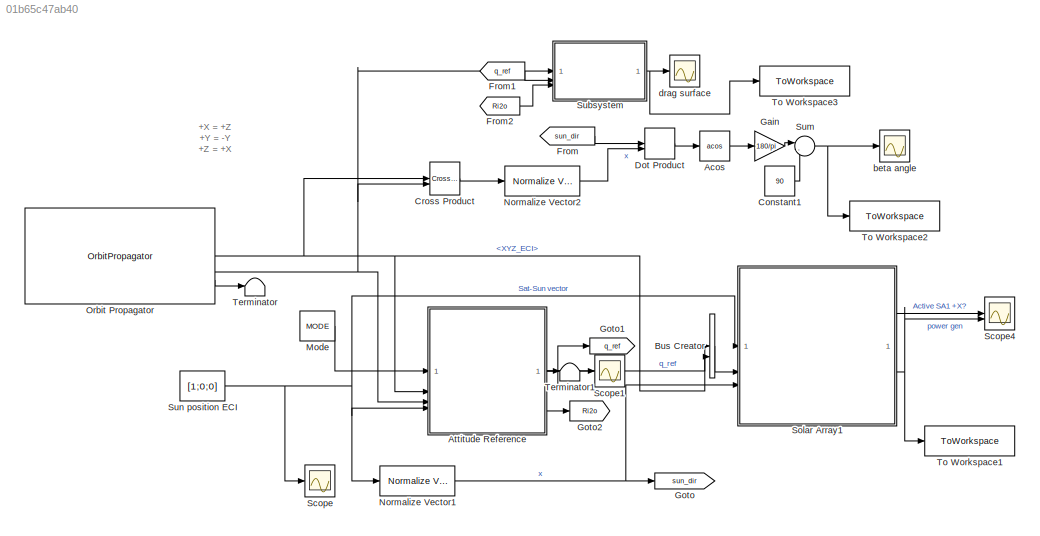
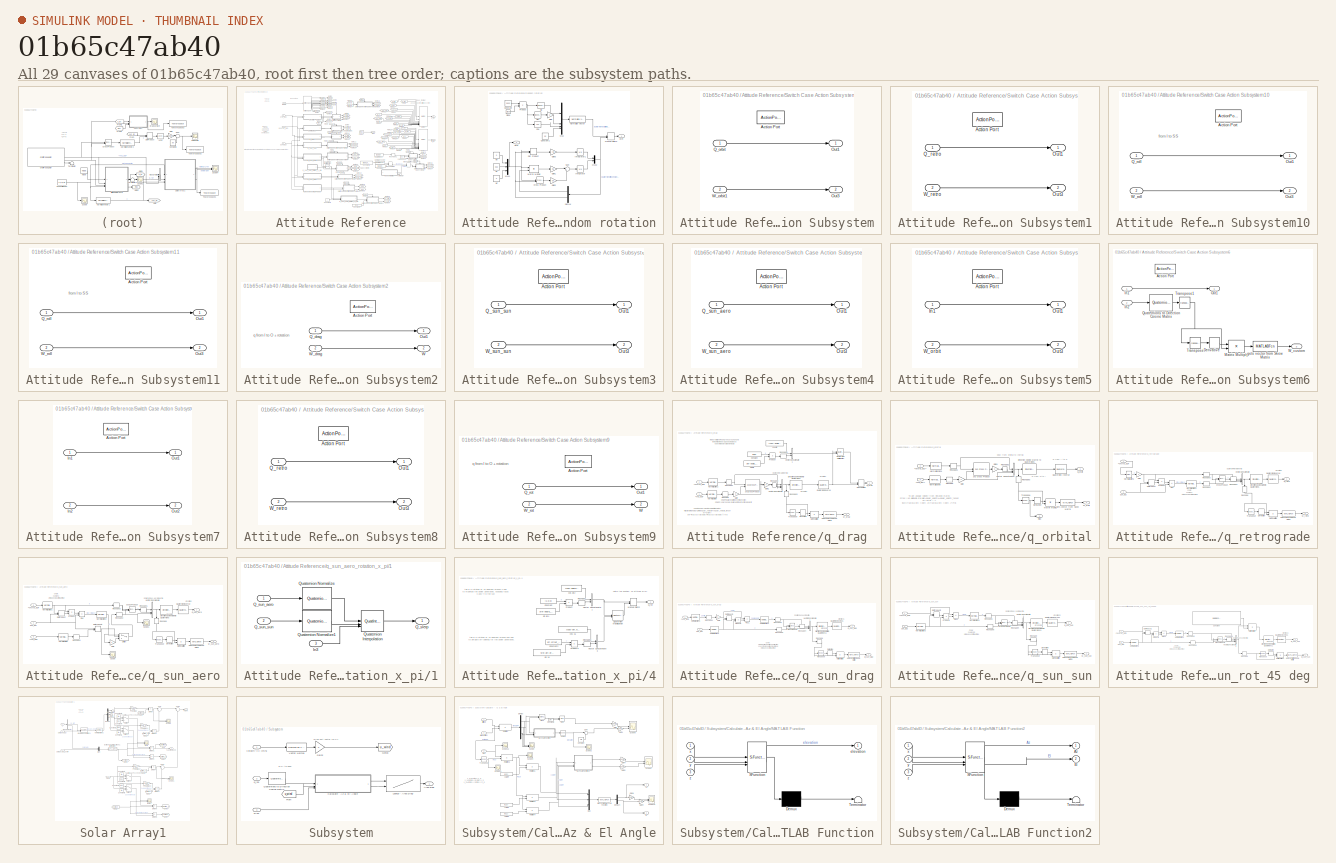
[diagram: thumbnail index - all 29 canvases of the model, root first then tree order]
MODEL slx_01b65c47ab40
KIND model
CONFIG AbsTol = auto
CONFIG EnableMultiTasking = off
CONFIG FixedStep = TimeStep
CONFIG MaxStep = auto
CONFIG MinStep = auto
CONFIG RelTol = 1e-3
CONFIG SampleTimeConstraint = Unconstrained
CONFIG SolverName = FixedStepAuto
CONFIG StartTime = 0.0
CONFIG StopTime = t_sim
BLOCK [Trigonometry] Acos
  Operator = acos
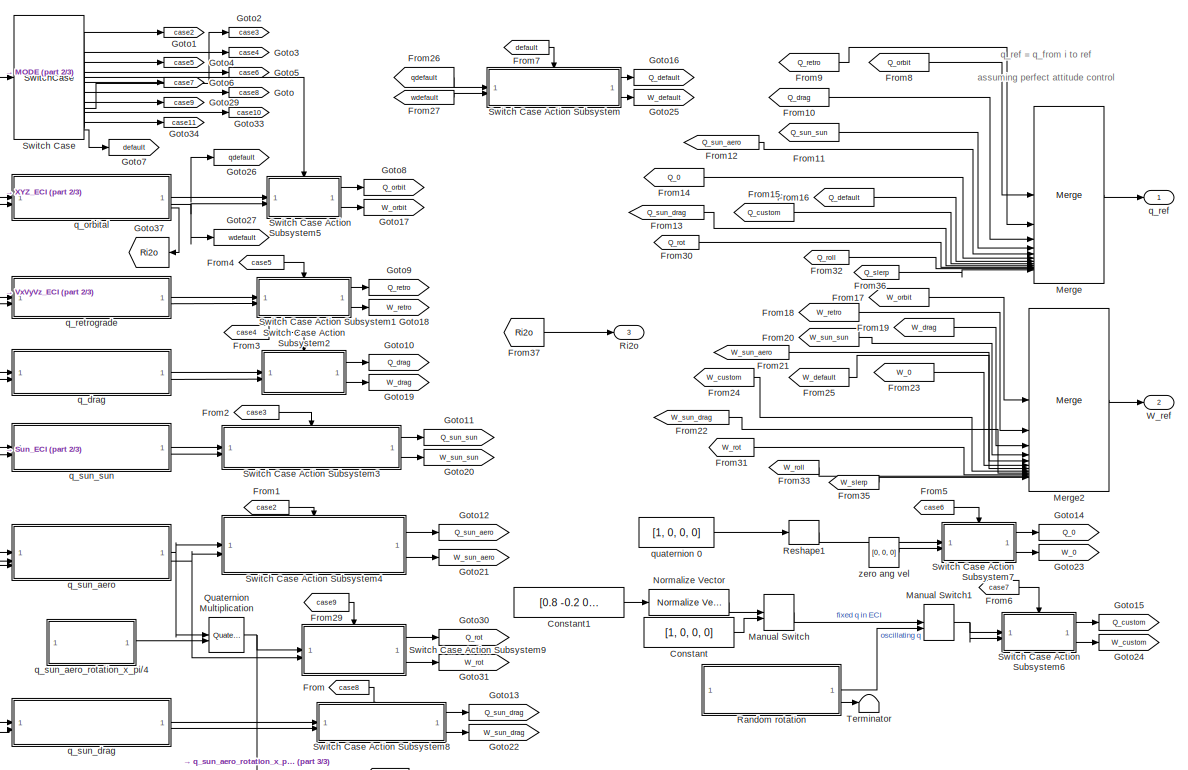
[diagram: Attitude Reference - part 1/3, center side, full height]
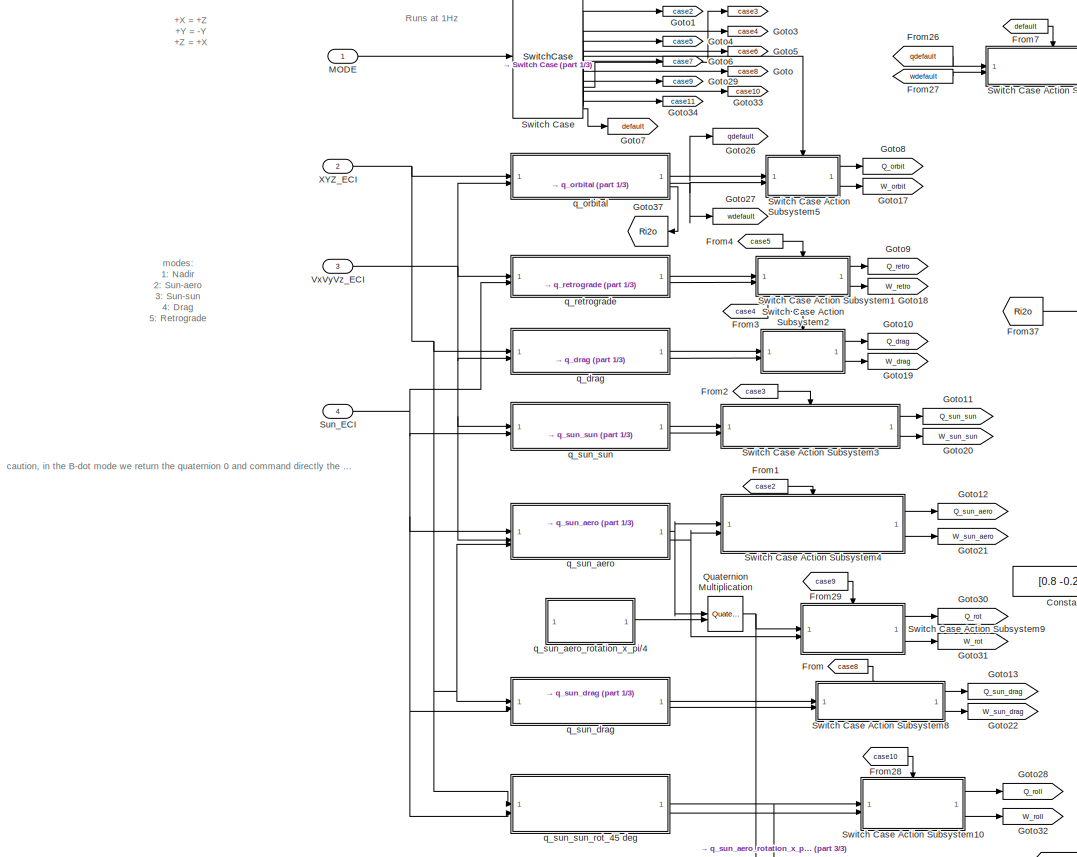
[diagram: Attitude Reference - part 2/3, left side, full height]
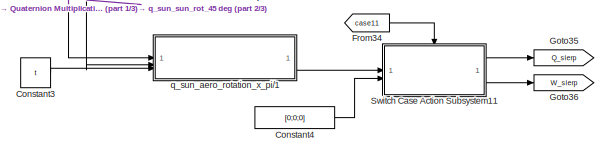
[diagram: Attitude Reference - part 3/3, bottom center region]
BLOCK [SubSystem] Attitude Reference
  TreatAsAtomicUnit = on
BLOCK [Constant] Attitude Reference/Constant
  Value = [1, 0, 0, 0]
BLOCK [Constant] Attitude Reference/Constant1
  Value = [0.8 -0.2 0.1 0.5]'
BLOCK [Constant] Attitude Reference/Constant3
  Value = t
BLOCK [Constant] Attitude Reference/Constant4
  Value = [0;0;0]
BLOCK [From] Attitude Reference/From
  GotoTag = case8
BLOCK [From] Attitude Reference/From1
  GotoTag = case2
BLOCK [From] Attitude Reference/From10
  GotoTag = Q_drag
BLOCK [From] Attitude Reference/From11
  GotoTag = Q_sun_sun
BLOCK [From] Attitude Reference/From12
  GotoTag = Q_sun_aero
BLOCK [From] Attitude Reference/From13
  GotoTag = Q_sun_drag
BLOCK [From] Attitude Reference/From14
  GotoTag = Q_0
BLOCK [From] Attitude Reference/From15
  GotoTag = Q_custom
BLOCK [From] Attitude Reference/From16
  GotoTag = Q_default
BLOCK [From] Attitude Reference/From17
  GotoTag = W_orbit
BLOCK [From] Attitude Reference/From18
  GotoTag = W_retro
BLOCK [From] Attitude Reference/From19
  GotoTag = W_drag
BLOCK [From] Attitude Reference/From2
  GotoTag = case3
BLOCK [From] Attitude Reference/From20
  GotoTag = W_sun_sun
BLOCK [From] Attitude Reference/From21
  GotoTag = W_sun_aero
BLOCK [From] Attitude Reference/From22
  GotoTag = W_sun_drag
BLOCK [From] Attitude Reference/From23
  GotoTag = W_0
BLOCK [From] Attitude Reference/From24
  GotoTag = W_custom
BLOCK [From] Attitude Reference/From25
  GotoTag = W_default
BLOCK [From] Attitude Reference/From26
  GotoTag = qdefault
BLOCK [From] Attitude Reference/From27
  GotoTag = wdefault
BLOCK [From] Attitude Reference/From28
  GotoTag = case10
BLOCK [From] Attitude Reference/From29
  GotoTag = case9
BLOCK [From] Attitude Reference/From3
  GotoTag = case4
BLOCK [From] Attitude Reference/From30
  GotoTag = Q_rot
BLOCK [From] Attitude Reference/From31
  GotoTag = W_rot
BLOCK [From] Attitude Reference/From32
  GotoTag = Q_roll
BLOCK [From] Attitude Reference/From33
  GotoTag = W_roll
BLOCK [From] Attitude Reference/From34
  GotoTag = case11
BLOCK [From] Attitude Reference/From35
  GotoTag = W_slerp
BLOCK [From] Attitude Reference/From36
  GotoTag = Q_slerp
BLOCK [From] Attitude Reference/From37
  GotoTag = Ri2o
BLOCK [From] Attitude Reference/From4
  GotoTag = case5
BLOCK [From] Attitude Reference/From5
  GotoTag = case6
BLOCK [From] Attitude Reference/From6
  GotoTag = case7
BLOCK [From] Attitude Reference/From7
  GotoTag = default
BLOCK [From] Attitude Reference/From8
  GotoTag = Q_orbit
BLOCK [From] Attitude Reference/From9
  GotoTag = Q_retro
BLOCK [Goto] Attitude Reference/Goto
  GotoTag = case8
BLOCK [Goto] Attitude Reference/Goto1
  GotoTag = case2
BLOCK [Goto] Attitude Reference/Goto10
  GotoTag = Q_drag
BLOCK [Goto] Attitude Reference/Goto11
  GotoTag = Q_sun_sun
BLOCK [Goto] Attitude Reference/Goto12
  GotoTag = Q_sun_aero
BLOCK [Goto] Attitude Reference/Goto13
  GotoTag = Q_sun_drag
BLOCK [Goto] Attitude Reference/Goto14
  GotoTag = Q_0
BLOCK [Goto] Attitude Reference/Goto15
  GotoTag = Q_custom
BLOCK [Goto] Attitude Reference/Goto16
  GotoTag = Q_default
BLOCK [Goto] Attitude Reference/Goto17
  GotoTag = W_orbit
BLOCK [Goto] Attitude Reference/Goto18
  GotoTag = W_retro
BLOCK [Goto] Attitude Reference/Goto19
  GotoTag = W_drag
BLOCK [Goto] Attitude Reference/Goto2
  GotoTag = case3
BLOCK [Goto] Attitude Reference/Goto20
  GotoTag = W_sun_sun
BLOCK [Goto] Attitude Reference/Goto21
  GotoTag = W_sun_aero
BLOCK [Goto] Attitude Reference/Goto22
  GotoTag = W_sun_drag
BLOCK [Goto] Attitude Reference/Goto23
  GotoTag = W_0
BLOCK [Goto] Attitude Reference/Goto24
  GotoTag = W_custom
BLOCK [Goto] Attitude Reference/Goto25
  GotoTag = W_default
BLOCK [Goto] Attitude Reference/Goto26
  GotoTag = qdefault
BLOCK [Goto] Attitude Reference/Goto27
  GotoTag = wdefault
BLOCK [Goto] Attitude Reference/Goto28
  GotoTag = Q_roll
BLOCK [Goto] Attitude Reference/Goto29
  GotoTag = case9
BLOCK [Goto] Attitude Reference/Goto3
  GotoTag = case4
BLOCK [Goto] Attitude Reference/Goto30
  GotoTag = Q_rot
BLOCK [Goto] Attitude Reference/Goto31
  GotoTag = W_rot
BLOCK [Goto] Attitude Reference/Goto32
  GotoTag = W_roll
BLOCK [Goto] Attitude Reference/Goto33
  GotoTag = case10
BLOCK [Goto] Attitude Reference/Goto34
  GotoTag = case11
BLOCK [Goto] Attitude Reference/Goto35
  GotoTag = Q_slerp
BLOCK [Goto] Attitude Reference/Goto36
  GotoTag = W_slerp
BLOCK [Goto] Attitude Reference/Goto37
  GotoTag = Ri2o
  NameLocation = top
BLOCK [Goto] Attitude Reference/Goto4
  GotoTag = case5
BLOCK [Goto] Attitude Reference/Goto5
  GotoTag = case6
BLOCK [Goto] Attitude Reference/Goto6
  GotoTag = case7
BLOCK [Goto] Attitude Reference/Goto7
  GotoTag = default
BLOCK [Goto] Attitude Reference/Goto8
  GotoTag = Q_orbit
BLOCK [Goto] Attitude Reference/Goto9
  GotoTag = Q_retro
BLOCK [Inport] Attitude Reference/MODE
  OutDataTypeStr = int8
  OutMax = 100
  OutMin = 1
BLOCK [ManualSwitch] Attitude Reference/Manual Switch
BLOCK [ManualSwitch] Attitude Reference/Manual Switch1
BLOCK [Merge] Attitude Reference/Merge
  Inputs = 12
BLOCK [Merge] Attitude Reference/Merge2
  Inputs = 12
BLOCK [Reference] Attitude Reference/Normalize Vector  REF=vrlib/Utilities/Normalize Vector
  SourceBlock = vrlib/Utilities/Normalize Vector
  SourceType = Normalize Vector
BLOCK [Reference] Attitude Reference/Quaternion Multiplication  REF=aerolibutil/Quaternion
Multiplication
  SourceBlock = aerolibutil/Quaternion\nMultiplication
  SourceType = Quaternion Multiplication
BLOCK [SubSystem] Attitude Reference/Random rotation
BLOCK [Clock] Attitude Reference/Random rotation/Clock
  Decimation = TimeStep
BLOCK [Constant] Attitude Reference/Random rotation/Constant
  Value = 0.002
BLOCK [Constant] Attitude Reference/Random rotation/Constant1
  Value = 0.2
BLOCK [Trigonometry] Attitude Reference/Random rotation/Cos
  Operator = cos
BLOCK [Reference] Attitude Reference/Random rotation/Cross Product  REF=vrlib/Utilities/Cross Product
  SourceBlock = vrlib/Utilities/Cross Product
  SourceType = Cross Product
BLOCK [Demux] Attitude Reference/Random rotation/Demux
  NameLocation = top
  Outputs = [1;3]
BLOCK [DotProduct] Attitude Reference/Random rotation/Dot Product
  OutDataTypeStr = Inherit: Inherit via internal rule
BLOCK [Gain] Attitude Reference/Random rotation/Gain
  Gain = 2
BLOCK [Gain] Attitude Reference/Random rotation/Gain1
  Gain = 0.5
BLOCK [Gain] Attitude Reference/Random rotation/Gain2
  Gain = 0.5
BLOCK [Gain] Attitude Reference/Random rotation/Gain3
  Gain = -0.5
BLOCK [Integrator] Attitude Reference/Random rotation/Integrator
  InitialCondition = [0;0;0]
BLOCK [Integrator] Attitude Reference/Random rotation/Integrator1
  InitialCondition = 1
BLOCK [ManualSwitch] Attitude Reference/Random rotation/Manual Switch
  CurrentSetting = 0
BLOCK [Product] Attitude Reference/Random rotation/Matrix Multiply
  Multiplication = Matrix(*)
BLOCK [Mux] Attitude Reference/Random rotation/Mux
  DisplayOption = bar
BLOCK [Mux] Attitude Reference/Random rotation/Mux1
  DisplayOption = bar
  Inputs = 3
BLOCK [Mux] Attitude Reference/Random rotation/Mux2
  DisplayOption = bar
  Inputs = [1;3]
BLOCK [Reference] Attitude Reference/Random rotation/Normalize Vector  REF=vrlib/Utilities/Normalize Vector
  SourceBlock = vrlib/Utilities/Normalize Vector
  SourceType = Normalize Vector
BLOCK [Product] Attitude Reference/Random rotation/Product
BLOCK [Trigonometry] Attitude Reference/Random rotation/Sin
BLOCK [Trigonometry] Attitude Reference/Random rotation/Sin1
BLOCK [Sum] Attitude Reference/Random rotation/Sum
  Inputs = |+-
BLOCK [Outport] Attitude Reference/Random rotation/qref
BLOCK [Outport] Attitude Reference/Random rotation/wref
  Port = 2
BLOCK [Constant] Attitude Reference/Random rotation/wx
  Value = 0
BLOCK [Constant] Attitude Reference/Random rotation/wy
  Value = 0.02
BLOCK [Constant] Attitude Reference/Random rotation/wz
  Value = 0
BLOCK [Reshape] Attitude Reference/Reshape1
  OutputDimensionality = Column vector (2-D)
BLOCK [Outport] Attitude Reference/Ri2o
  Port = 3
BLOCK [Inport] Attitude Reference/Sun_ECI
  Port = 4
BLOCK [SwitchCase] Attitude Reference/Switch Case
  CaseConditions = {1, 2, 3, 4, 5, 6, 7, 8, 9, 10, 11}
BLOCK [SubSystem] Attitude Reference/Switch Case Action Subsystem
  TreatAsAtomicUnit = on
BLOCK [ActionPort] Attitude Reference/Switch Case Action Subsystem/Action Port
  ActionPortLabel = default:
BLOCK [Outport] Attitude Reference/Switch Case Action Subsystem/Out1
  VectorParamsAs1DForOutWhenUnconnected = off
BLOCK [Outport] Attitude Reference/Switch Case Action Subsystem/Out3
  Port = 2
  VectorParamsAs1DForOutWhenUnconnected = off
BLOCK [Inport] Attitude Reference/Switch Case Action Subsystem/Q_orbit
BLOCK [Inport] Attitude Reference/Switch Case Action Subsystem/W_orbit1
  Port = 2
BLOCK [SubSystem] Attitude Reference/Switch Case Action Subsystem1
  TreatAsAtomicUnit = on
BLOCK [ActionPort] Attitude Reference/Switch Case Action Subsystem1/Action Port
  ActionPortLabel = case [ 5 ]:
BLOCK [Outport] Attitude Reference/Switch Case Action Subsystem1/Out1
  VectorParamsAs1DForOutWhenUnconnected = off
BLOCK [Outport] Attitude Reference/Switch Case Action Subsystem1/Out3
  Port = 2
  VectorParamsAs1DForOutWhenUnconnected = off
BLOCK [Inport] Attitude Reference/Switch Case Action Subsystem1/Q_retro
BLOCK [Inport] Attitude Reference/Switch Case Action Subsystem1/W_retro
  Port = 2
BLOCK [SubSystem] Attitude Reference/Switch Case Action Subsystem10
  TreatAsAtomicUnit = on
BLOCK [ActionPort] Attitude Reference/Switch Case Action Subsystem10/Action Port
  ActionPortLabel = case [ 10 ]:
BLOCK [Outport] Attitude Reference/Switch Case Action Subsystem10/Out1
  VectorParamsAs1DForOutWhenUnconnected = off
BLOCK [Outport] Attitude Reference/Switch Case Action Subsystem10/Out3
  Port = 2
  VectorParamsAs1DForOutWhenUnconnected = off
BLOCK [Inport] Attitude Reference/Switch Case Action Subsystem10/Q_roll
BLOCK [Inport] Attitude Reference/Switch Case Action Subsystem10/W_roll
  Port = 2
BLOCK [SubSystem] Attitude Reference/Switch Case Action Subsystem11
  TreatAsAtomicUnit = on
BLOCK [ActionPort] Attitude Reference/Switch Case Action Subsystem11/Action Port
  ActionPortLabel = case [ 11 ]:
BLOCK [Outport] Attitude Reference/Switch Case Action Subsystem11/Out1
  VectorParamsAs1DForOutWhenUnconnected = off
BLOCK [Outport] Attitude Reference/Switch Case Action Subsystem11/Out3
  Port = 2
  VectorParamsAs1DForOutWhenUnconnected = off
BLOCK [Inport] Attitude Reference/Switch Case Action Subsystem11/Q_roll
BLOCK [Inport] Attitude Reference/Switch Case Action Subsystem11/W_roll
  Port = 2
BLOCK [SubSystem] Attitude Reference/Switch Case Action Subsystem2
  TreatAsAtomicUnit = on
BLOCK [ActionPort] Attitude Reference/Switch Case Action Subsystem2/Action Port
  ActionPortLabel = case [ 4 ]:
BLOCK [Outport] Attitude Reference/Switch Case Action Subsystem2/Out1
  VectorParamsAs1DForOutWhenUnconnected = off
BLOCK [Inport] Attitude Reference/Switch Case Action Subsystem2/Q_drag
BLOCK [Outport] Attitude Reference/Switch Case Action Subsystem2/W
  Port = 2
BLOCK [Inport] Attitude Reference/Switch Case Action Subsystem2/W_drag
  Port = 2
BLOCK [SubSystem] Attitude Reference/Switch Case Action Subsystem3
  TreatAsAtomicUnit = on
BLOCK [ActionPort] Attitude Reference/Switch Case Action Subsystem3/Action Port
  ActionPortLabel = case [ 3 ]:
BLOCK [Outport] Attitude Reference/Switch Case Action Subsystem3/Out1
  VectorParamsAs1DForOutWhenUnconnected = off
BLOCK [Outport] Attitude Reference/Switch Case Action Subsystem3/Out3
  Port = 2
  VectorParamsAs1DForOutWhenUnconnected = off
BLOCK [Inport] Attitude Reference/Switch Case Action Subsystem3/Q_sun_sun
BLOCK [Inport] Attitude Reference/Switch Case Action Subsystem3/W_sun_sun
  Port = 2
BLOCK [SubSystem] Attitude Reference/Switch Case Action Subsystem4
  TreatAsAtomicUnit = on
BLOCK [ActionPort] Attitude Reference/Switch Case Action Subsystem4/Action Port
  ActionPortLabel = case [ 2 ]:
BLOCK [Outport] Attitude Reference/Switch Case Action Subsystem4/Out1
  VectorParamsAs1DForOutWhenUnconnected = off
BLOCK [Outport] Attitude Reference/Switch Case Action Subsystem4/Out3
  Port = 2
  VectorParamsAs1DForOutWhenUnconnected = off
BLOCK [Inport] Attitude Reference/Switch Case Action Subsystem4/Q_sun_aero
BLOCK [Inport] Attitude Reference/Switch Case Action Subsystem4/W_sun_aero
  Port = 2
BLOCK [SubSystem] Attitude Reference/Switch Case Action Subsystem5
  TreatAsAtomicUnit = on
BLOCK [ActionPort] Attitude Reference/Switch Case Action Subsystem5/Action Port
  ActionPortLabel = case [ 1 ]:
BLOCK [Inport] Attitude Reference/Switch Case Action Subsystem5/In1
BLOCK [Outport] Attitude Reference/Switch Case Action Subsystem5/Out1
  VectorParamsAs1DForOutWhenUnconnected = off
BLOCK [Outport] Attitude Reference/Switch Case Action Subsystem5/Out3
  Port = 2
  VectorParamsAs1DForOutWhenUnconnected = off
BLOCK [Inport] Attitude Reference/Switch Case Action Subsystem5/W_orbit
  Port = 2
BLOCK [SubSystem] Attitude Reference/Switch Case Action Subsystem6
  TreatAsAtomicUnit = on
BLOCK [ActionPort] Attitude Reference/Switch Case Action Subsystem6/Action Port
  ActionPortLabel = case [ 7 ]:
BLOCK [Derivative] Attitude Reference/Switch Case Action Subsystem6/Derivative
BLOCK [Inport] Attitude Reference/Switch Case Action Subsystem6/In1
BLOCK [Inport] Attitude Reference/Switch Case Action Subsystem6/In2
  Port = 2
BLOCK [Product] Attitude Reference/Switch Case Action Subsystem6/Matrix Multiply
  Multiplication = Matrix(*)
BLOCK [Outport] Attitude Reference/Switch Case Action Subsystem6/Out1
  VectorParamsAs1DForOutWhenUnconnected = off
BLOCK [Reference] Attitude Reference/Switch Case Action Subsystem6/Quaternions to Direction Cosine Matrix  REF=sharedtransform/Quaternions to 
Direction Cosine Matrix
  SourceBlock = sharedtransform/Quaternions to \nDirection Cosine Matrix
  SourceType = Quaternion2DCM
BLOCK [Math] Attitude Reference/Switch Case Action Subsystem6/Transpose
  Operator = transpose
BLOCK [Math] Attitude Reference/Switch Case Action Subsystem6/Transpose1
  Operator = transpose
BLOCK [Outport] Attitude Reference/Switch Case Action Subsystem6/W_custom
  Port = 2
BLOCK [MATLABFcn] Attitude Reference/Switch Case Action Subsystem6/gets vector from Skew Matrix
  MATLABFcn = vec_from_skew
BLOCK [SubSystem] Attitude Reference/Switch Case Action Subsystem7
  TreatAsAtomicUnit = on
BLOCK [ActionPort] Attitude Reference/Switch Case Action Subsystem7/Action Port
  ActionPortLabel = case [ 6 ]:
BLOCK [Inport] Attitude Reference/Switch Case Action Subsystem7/In1
BLOCK [Inport] Attitude Reference/Switch Case Action Subsystem7/In2
  Port = 2
BLOCK [Outport] Attitude Reference/Switch Case Action Subsystem7/Out1
  VectorParamsAs1DForOutWhenUnconnected = off
BLOCK [Outport] Attitude Reference/Switch Case Action Subsystem7/Out2
  Port = 2
  VectorParamsAs1DForOutWhenUnconnected = off
BLOCK [SubSystem] Attitude Reference/Switch Case Action Subsystem8
  TreatAsAtomicUnit = on
BLOCK [ActionPort] Attitude Reference/Switch Case Action Subsystem8/Action Port
  ActionPortLabel = case [ 8 ]:
BLOCK [Outport] Attitude Reference/Switch Case Action Subsystem8/Out1
  VectorParamsAs1DForOutWhenUnconnected = off
BLOCK [Outport] Attitude Reference/Switch Case Action Subsystem8/Out3
  Port = 2
  VectorParamsAs1DForOutWhenUnconnected = off
BLOCK [Inport] Attitude Reference/Switch Case Action Subsystem8/Q_retro
BLOCK [Inport] Attitude Reference/Switch Case Action Subsystem8/W_retro
  Port = 2
BLOCK [SubSystem] Attitude Reference/Switch Case Action Subsystem9
  TreatAsAtomicUnit = on
BLOCK [ActionPort] Attitude Reference/Switch Case Action Subsystem9/Action Port
  ActionPortLabel = case [ 9 ]:
BLOCK [Outport] Attitude Reference/Switch Case Action Subsystem9/Out1
  VectorParamsAs1DForOutWhenUnconnected = off
BLOCK [Inport] Attitude Reference/Switch Case Action Subsystem9/Q_rot
BLOCK [Outport] Attitude Reference/Switch Case Action Subsystem9/W
  Port = 2
BLOCK [Inport] Attitude Reference/Switch Case Action Subsystem9/W_rot
  Port = 2
BLOCK [Terminator] Attitude Reference/Terminator
BLOCK [Inport] Attitude Reference/VxVyVz_ECI
  Port = 3
BLOCK [Outport] Attitude Reference/W_ref
  Port = 2
BLOCK [Inport] Attitude Reference/XYZ_ECI
  Port = 2
BLOCK [SubSystem] Attitude Reference/q_drag
BLOCK [Reference] Attitude Reference/q_drag/3x3 Cross Product  REF=sharedutil/3x3 Cross Product
  SourceBlock = sharedutil/3x3 Cross Product
  SourceType = CrossProduct
BLOCK [Inport] Attitude Reference/q_drag/<VxVyVz_ECI>
  Port = 2
BLOCK [Inport] Attitude Reference/q_drag/<XYZ_ECI>
BLOCK [Constant] Attitude Reference/q_drag/Constant
  Value = [1;0;0]
BLOCK [Derivative] Attitude Reference/q_drag/Derivative
BLOCK [Reference] Attitude Reference/q_drag/Direction Cosine Matrix to Quaternions  REF=sharedtransform/Direction Cosine Matrix 
to Quaternions
  SourceBlock = sharedtransform/Direction Cosine Matrix \nto Quaternions
  SourceType = DCM2Quaternion
BLOCK [Gain] Attitude Reference/q_drag/Gain
BLOCK [Gain] Attitude Reference/q_drag/Gain1
BLOCK [ManualSwitch] Attitude Reference/q_drag/Manual Switch
BLOCK [Product] Attitude Reference/q_drag/Matrix Multiply
  Multiplication = Matrix(*)
BLOCK [Reference] Attitude Reference/q_drag/Normalization  REF=dspmathops/Normalization
  SourceBlock = dspmathops/Normalization
  SourceType = Normalization
BLOCK [Reference] Attitude Reference/q_drag/Normalization1  REF=dspmathops/Normalization
  SourceBlock = dspmathops/Normalization
  SourceType = Normalization
BLOCK [Product] Attitude Reference/q_drag/Product
BLOCK [Outport] Attitude Reference/q_drag/Q_drag
  VectorParamsAs1DForOutWhenUnconnected = off
BLOCK [Reference] Attitude Reference/q_drag/Quaternion Inverse  REF=aerolibutil/Quaternion
Inverse
  SourceBlock = aerolibutil/Quaternion\nInverse
  SourceType = Quaternion Inverse
BLOCK [Reference] Attitude Reference/q_drag/Quaternion Multiplication  REF=aerolibutil/Quaternion
Multiplication
  SourceBlock = aerolibutil/Quaternion\nMultiplication
  SourceType = Quaternion Multiplication
BLOCK [Reshape] Attitude Reference/q_drag/Reshape
  OutputDimensionality = Column vector (2-D)
BLOCK [Reshape] Attitude Reference/q_drag/Reshape1
  OutputDimensionality = Column vector (2-D)
BLOCK [Reshape] Attitude Reference/q_drag/Reshape2
  OutputDimensionality = Column vector (2-D)
BLOCK [Reshape] Attitude Reference/q_drag/Reshape3
  NameLocation = left
  OutputDimensionality = Customize
  OutputDimensions = [3,3]
BLOCK [Reshape] Attitude Reference/q_drag/Reshape4
  OutputDimensionality = Column vector (2-D)
BLOCK [Math] Attitude Reference/q_drag/Transpose
  Operator = transpose
BLOCK [Concatenate] Attitude Reference/q_drag/Vector Concatenate
  ConcatenateDimension = 2
  Mode = Multidimensional array
  NumInputs = 3
BLOCK [Concatenate] Attitude Reference/q_drag/Vector Concatenate1
  Mode = Multidimensional array
BLOCK [Outport] Attitude Reference/q_drag/W_drag
  Port = 2
BLOCK [Constant] Attitude Reference/q_drag/cos pi//2
  Value = [cos(-angle_roll/2)]
BLOCK [MATLABFcn] Attitude Reference/q_drag/gets vector from Skew Matrix
  MATLABFcn = vec_from_skew
BLOCK [Constant] Attitude Reference/q_drag/sin pi//4
  Value = sin(-angle_roll/2)
BLOCK [SubSystem] Attitude Reference/q_orbital
BLOCK [Reference] Attitude Reference/q_orbital/3x3 Cross Product  REF=sharedutil/3x3 Cross Product
  SourceBlock = sharedutil/3x3 Cross Product
  SourceType = CrossProduct
BLOCK [Inport] Attitude Reference/q_orbital/<VxVyVz_ECI>
  Port = 2
BLOCK [Inport] Attitude Reference/q_orbital/<XYZ_ECI>
BLOCK [Derivative] Attitude Reference/q_orbital/Derivative
BLOCK [Reference] Attitude Reference/q_orbital/Direction Cosine Matrix to Quaternions  REF=sharedtransform/Direction Cosine Matrix 
to Quaternions
  SourceBlock = sharedtransform/Direction Cosine Matrix \nto Quaternions
  SourceType = DCM2Quaternion
BLOCK [Gain] Attitude Reference/q_orbital/Gain
BLOCK [Gain] Attitude Reference/q_orbital/Gain1
  Gain = -1
BLOCK [Product] Attitude Reference/q_orbital/Matrix Multiply
  Multiplication = Matrix(*)
BLOCK [Reference] Attitude Reference/q_orbital/Normalization  REF=dspmathops/Normalization
  SourceBlock = dspmathops/Normalization
  SourceType = Normalization
BLOCK [Reference] Attitude Reference/q_orbital/Normalization1  REF=dspmathops/Normalization
  SourceBlock = dspmathops/Normalization
  SourceType = Normalization
BLOCK [Outport] Attitude Reference/q_orbital/Q_orbit
  VectorParamsAs1DForOutWhenUnconnected = off
BLOCK [Reference] Attitude Reference/q_orbital/Quaternion Inverse  REF=aerolibutil/Quaternion
Inverse
  SourceBlock = aerolibutil/Quaternion\nInverse
  SourceType = Quaternion Inverse
BLOCK [Reshape] Attitude Reference/q_orbital/Reshape
  OutputDimensionality = Column vector (2-D)
BLOCK [Reshape] Attitude Reference/q_orbital/Reshape1
  OutputDimensionality = Column vector (2-D)
BLOCK [Reshape] Attitude Reference/q_orbital/Reshape2
  OutputDimensionality = Column vector (2-D)
BLOCK [Reshape] Attitude Reference/q_orbital/Reshape3
  NameLocation = left
  OutputDimensionality = Customize
  OutputDimensions = [3,3]
BLOCK [Outport] Attitude Reference/q_orbital/Ri2o
  Port = 3
BLOCK [Math] Attitude Reference/q_orbital/Transpose
  Operator = transpose
BLOCK [Concatenate] Attitude Reference/q_orbital/Vector Concatenate
  ConcatenateDimension = 2
  Mode = Multidimensional array
  NumInputs = 3
BLOCK [Outport] Attitude Reference/q_orbital/W_orbit
  Port = 2
BLOCK [MATLABFcn] Attitude Reference/q_orbital/gets vector from Skew Matrix
  MATLABFcn = vec_from_skew
BLOCK [Outport] Attitude Reference/q_ref
  VectorParamsAs1DForOutWhenUnconnected = off
BLOCK [SubSystem] Attitude Reference/q_retrograde
BLOCK [Inport] Attitude Reference/q_retrograde/<VxVyVz_ECI>
BLOCK [Reference] Attitude Reference/q_retrograde/Cross Product  REF=vrlib/Utilities/Cross Product
  SourceBlock = vrlib/Utilities/Cross Product
  SourceType = Cross Product
BLOCK [Derivative] Attitude Reference/q_retrograde/Derivative
BLOCK [Reference] Attitude Reference/q_retrograde/Direction Cosine Matrix to Quaternions  REF=sharedtransform/Direction Cosine Matrix 
to Quaternions
  SourceBlock = sharedtransform/Direction Cosine Matrix \nto Quaternions
  SourceType = DCM2Quaternion
BLOCK [DotProduct] Attitude Reference/q_retrograde/Dot Product
  OutDataTypeStr = Inherit: Inherit via internal rule
BLOCK [Gain] Attitude Reference/q_retrograde/Gain
  Gain = -1
BLOCK [Product] Attitude Reference/q_retrograde/Matrix Multiply
  Multiplication = Matrix(*)
BLOCK [Reference] Attitude Reference/q_retrograde/Normalization1  REF=dspmathops/Normalization
  SourceBlock = dspmathops/Normalization
  SourceType = Normalization
BLOCK [Reference] Attitude Reference/q_retrograde/Normalization2  REF=dspmathops/Normalization
  SourceBlock = dspmathops/Normalization
  SourceType = Normalization
BLOCK [Sum] Attitude Reference/q_retrograde/Plus
  IconShape = rectangular
  Inputs = -+
BLOCK [Product] Attitude Reference/q_retrograde/Product
BLOCK [Outport] Attitude Reference/q_retrograde/Q_retro
  VectorParamsAs1DForOutWhenUnconnected = off
BLOCK [Reference] Attitude Reference/q_retrograde/Quaternion Inverse  REF=aerolibutil/Quaternion
Inverse
  SourceBlock = aerolibutil/Quaternion\nInverse
  SourceType = Quaternion Inverse
BLOCK [Reshape] Attitude Reference/q_retrograde/Reshape
  NameLocation = left
  OutputDimensionality = Customize
  OutputDimensions = [3,3]
BLOCK [Reshape] Attitude Reference/q_retrograde/Reshape1
  OutputDimensionality = Column vector (2-D)
BLOCK [Reshape] Attitude Reference/q_retrograde/Reshape2
  OutputDimensionality = Column vector (2-D)
BLOCK [Reshape] Attitude Reference/q_retrograde/Reshape3
  OutputDimensionality = Column vector (2-D)
BLOCK [Inport] Attitude Reference/q_retrograde/Sun_ECI
  Port = 2
BLOCK [Math] Attitude Reference/q_retrograde/Transpose
  Operator = transpose
BLOCK [Concatenate] Attitude Reference/q_retrograde/Vector Concatenate
  ConcatenateDimension = 2
  Mode = Multidimensional array
  NumInputs = 3
BLOCK [Outport] Attitude Reference/q_retrograde/W_retro
  Port = 2
BLOCK [MATLABFcn] Attitude Reference/q_retrograde/gets vector from Skew Matrix
  MATLABFcn = vec_from_skew
BLOCK [SubSystem] Attitude Reference/q_sun_aero
BLOCK [Inport] Attitude Reference/q_sun_aero/<VxVyVz_ECI>
  Port = 2
BLOCK [Inport] Attitude Reference/q_sun_aero/<XYZ_ECI>
  Port = 3
BLOCK [Reference] Attitude Reference/q_sun_aero/Cross Product  REF=vrlib/Utilities/Cross Product
  SourceBlock = vrlib/Utilities/Cross Product
  SourceType = Cross Product
BLOCK [Derivative] Attitude Reference/q_sun_aero/Derivative
BLOCK [Reference] Attitude Reference/q_sun_aero/Direction Cosine Matrix to Quaternions  REF=sharedtransform/Direction Cosine Matrix 
to Quaternions
  SourceBlock = sharedtransform/Direction Cosine Matrix \nto Quaternions
  SourceType = DCM2Quaternion
BLOCK [DotProduct] Attitude Reference/q_sun_aero/Dot Product
  OutDataTypeStr = Inherit: Inherit via internal rule
BLOCK [DotProduct] Attitude Reference/q_sun_aero/Dot Product1
  OutDataTypeStr = Inherit: Inherit via internal rule
BLOCK [Gain] Attitude Reference/q_sun_aero/Gain
  Gain = -1
BLOCK [Product] Attitude Reference/q_sun_aero/Matrix Multiply
  Multiplication = Matrix(*)
BLOCK [Reference] Attitude Reference/q_sun_aero/Normalization  REF=dspmathops/Normalization
  SourceBlock = dspmathops/Normalization
  SourceType = Normalization
BLOCK [Reference] Attitude Reference/q_sun_aero/Normalization1  REF=dspmathops/Normalization
  SourceBlock = dspmathops/Normalization
  SourceType = Normalization
BLOCK [Reference] Attitude Reference/q_sun_aero/Normalization2  REF=dspmathops/Normalization
  SourceBlock = dspmathops/Normalization
  SourceType = Normalization
BLOCK [Sum] Attitude Reference/q_sun_aero/Plus
  IconShape = rectangular
  Inputs = -+
BLOCK [Product] Attitude Reference/q_sun_aero/Product
BLOCK [Outport] Attitude Reference/q_sun_aero/Q_sun_aero
  VectorParamsAs1DForOutWhenUnconnected = off
BLOCK [Reference] Attitude Reference/q_sun_aero/Quaternion Inverse  REF=aerolibutil/Quaternion
Inverse
  SourceBlock = aerolibutil/Quaternion\nInverse
  SourceType = Quaternion Inverse
BLOCK [Reshape] Attitude Reference/q_sun_aero/Reshape
  NameLocation = left
  OutputDimensionality = Customize
  OutputDimensions = [3,3]
BLOCK [Reshape] Attitude Reference/q_sun_aero/Reshape1
  OutputDimensionality = Column vector (2-D)
BLOCK [Reshape] Attitude Reference/q_sun_aero/Reshape2
  OutputDimensionality = Column vector (2-D)
BLOCK [Reshape] Attitude Reference/q_sun_aero/Reshape3
  OutputDimensionality = Column vector (2-D)
BLOCK [Reshape] Attitude Reference/q_sun_aero/Reshape4
  OutputDimensionality = Column vector (2-D)
BLOCK [Scope] Attitude Reference/q_sun_aero/Scope
  Floating = off
  NumInputPorts = 1
  ScopeSpecificationString = Simulink.scopes.TimeScopeBlockCfg('CurrentConfiguration', extmgr.ConfigurationSet(extmgr.Configuration('Core','General UI',true),extmgr.Configuration('Core','Source UI',true),extmgr.Configuration('Sources','WiredSimulink',true,'DataLoggingVariableName','ScopeData1'),extmgr.Configuration('Visuals','Time Domain',true,'SerializedDisplays',{struct('MinYLimReal','-1.25','MaxYLimReal','1.25','YLabelReal...<+1407ch>
BLOCK [Scope] Attitude Reference/q_sun_aero/Scope1
  Floating = off
  NumInputPorts = 1
  ScopeSpecificationString = Simulink.scopes.TimeScopeBlockCfg('CurrentConfiguration', extmgr.ConfigurationSet(extmgr.Configuration('Core','General UI',true),extmgr.Configuration('Core','Source UI',true),extmgr.Configuration('Sources','WiredSimulink',true,'DataLoggingVariableName','ScopeData1'),extmgr.Configuration('Visuals','Time Domain',true,'SerializedDisplays',{struct('MinYLimReal','-1.25','MaxYLimReal','1.25','YLabelReal...<+1406ch>
BLOCK [Inport] Attitude Reference/q_sun_aero/Sun_ECI
BLOCK [Switch] Attitude Reference/q_sun_aero/Switch
  Criteria = u2 > Threshold
  InputSameDT = off
  SaturateOnIntegerOverflow = off
BLOCK [Math] Attitude Reference/q_sun_aero/Transpose
  Operator = transpose
BLOCK [Concatenate] Attitude Reference/q_sun_aero/Vector Concatenate
  ConcatenateDimension = 2
  Mode = Multidimensional array
  NumInputs = 3
BLOCK [Outport] Attitude Reference/q_sun_aero/W_sun_aero
  Port = 2
BLOCK [MATLABFcn] Attitude Reference/q_sun_aero/gets vector from Skew Matrix
  MATLABFcn = vec_from_skew
BLOCK [SubSystem] Attitude Reference/q_sun_aero_rotation_x_pi//1
BLOCK [Inport] Attitude Reference/q_sun_aero_rotation_x_pi//1/In3
  Port = 3
BLOCK [Outport] Attitude Reference/q_sun_aero_rotation_x_pi//1/Q_slerp
  VectorParamsAs1DForOutWhenUnconnected = off
BLOCK [Inport] Attitude Reference/q_sun_aero_rotation_x_pi//1/Q_sun_aero
BLOCK [Inport] Attitude Reference/q_sun_aero_rotation_x_pi//1/Q_sun_sun
  Port = 2
BLOCK [QuatInterp] Attitude Reference/q_sun_aero_rotation_x_pi//1/Quaternion Interpolation
BLOCK [Reference] Attitude Reference/q_sun_aero_rotation_x_pi//1/Quaternion Normalize  REF=sharedutil/Quaternion
Normalize
  LibrarySourceBlock = aerolibutil/Quaternion\nNormalize
  SourceBlock = sharedutil/Quaternion\nNormalize
  SourceType = Quaternion Normalize
BLOCK [Reference] Attitude Reference/q_sun_aero_rotation_x_pi//1/Quaternion Normalize1  REF=sharedutil/Quaternion
Normalize
  LibrarySourceBlock = aerolibutil/Quaternion\nNormalize
  SourceBlock = sharedutil/Quaternion\nNormalize
  SourceType = Quaternion Normalize
BLOCK [SubSystem] Attitude Reference/q_sun_aero_rotation_x_pi//4
BLOCK [Constant] Attitude Reference/q_sun_aero_rotation_x_pi//4/Constant
  Value = [1;0;0]
BLOCK [Constant] Attitude Reference/q_sun_aero_rotation_x_pi//4/Constant2
  Value = att.offset_axis
BLOCK [ManualSwitch] Attitude Reference/q_sun_aero_rotation_x_pi//4/Manual Switch
  CurrentSetting = 0
BLOCK [Product] Attitude Reference/q_sun_aero_rotation_x_pi//4/Product
BLOCK [Product] Attitude Reference/q_sun_aero_rotation_x_pi//4/Product2
BLOCK [Outport] Attitude Reference/q_sun_aero_rotation_x_pi//4/Q_rot
  VectorParamsAs1DForOutWhenUnconnected = off
BLOCK [Reference] Attitude Reference/q_sun_aero_rotation_x_pi//4/Quaternion Multiplication  REF=aerolibutil/Quaternion
Multiplication
  SourceBlock = aerolibutil/Quaternion\nMultiplication
  SourceType = Quaternion Multiplication
BLOCK [Reshape] Attitude Reference/q_sun_aero_rotation_x_pi//4/Reshape1
  OutputDimensionality = Column vector (2-D)
BLOCK [Reshape] Attitude Reference/q_sun_aero_rotation_x_pi//4/Reshape3
  OutputDimensionality = Column vector (2-D)
BLOCK [Concatenate] Attitude Reference/q_sun_aero_rotation_x_pi//4/Vector Concatenate1
  Mode = Multidimensional array
BLOCK [Concatenate] Attitude Reference/q_sun_aero_rotation_x_pi//4/Vector Concatenate3
  Mode = Multidimensional array
BLOCK [Constant] Attitude Reference/q_sun_aero_rotation_x_pi//4/cos 15
  Value = [cos(-att.offset_angle/2)]
BLOCK [Constant] Attitude Reference/q_sun_aero_rotation_x_pi//4/cos pi//2
  Value = [cos(-angle_roll/2)]
BLOCK [Constant] Attitude Reference/q_sun_aero_rotation_x_pi//4/sin 15
  Value = sin(-att.offset_angle/2)
BLOCK [Constant] Attitude Reference/q_sun_aero_rotation_x_pi//4/sin pi//4
  Value = sin(-angle_roll/2)
BLOCK [SubSystem] Attitude Reference/q_sun_drag
BLOCK [Inport] Attitude Reference/q_sun_drag/<XYZ_ECI>
BLOCK [Reference] Attitude Reference/q_sun_drag/Cross Product1  REF=vrlib/Utilities/Cross Product
  SourceBlock = vrlib/Utilities/Cross Product
  SourceType = Cross Product
BLOCK [Derivative] Attitude Reference/q_sun_drag/Derivative
BLOCK [Reference] Attitude Reference/q_sun_drag/Direction Cosine Matrix to Quaternions1  REF=sharedtransform/Direction Cosine Matrix 
to Quaternions
  SourceBlock = sharedtransform/Direction Cosine Matrix \nto Quaternions
  SourceType = DCM2Quaternion
BLOCK [DotProduct] Attitude Reference/q_sun_drag/Dot Product1
  OutDataTypeStr = Inherit: Inherit via internal rule
BLOCK [Gain] Attitude Reference/q_sun_drag/Gain
  Gain = -1
BLOCK [Product] Attitude Reference/q_sun_drag/Matrix Multiply
  Multiplication = Matrix(*)
BLOCK [Reference] Attitude Reference/q_sun_drag/Normalization1  REF=dspmathops/Normalization
  SourceBlock = dspmathops/Normalization
  SourceType = Normalization
BLOCK [Reference] Attitude Reference/q_sun_drag/Normalization3  REF=dspmathops/Normalization
  SourceBlock = dspmathops/Normalization
  SourceType = Normalization
BLOCK [Reference] Attitude Reference/q_sun_drag/Normalization4  REF=dspmathops/Normalization
  SourceBlock = dspmathops/Normalization
  SourceType = Normalization
BLOCK [Sum] Attitude Reference/q_sun_drag/Plus1
  IconShape = rectangular
  Inputs = -+
BLOCK [Product] Attitude Reference/q_sun_drag/Product1
BLOCK [Outport] Attitude Reference/q_sun_drag/Q_sun_drag
  VectorParamsAs1DForOutWhenUnconnected = off
BLOCK [Reference] Attitude Reference/q_sun_drag/Quaternion Inverse1  REF=aerolibutil/Quaternion
Inverse
  SourceBlock = aerolibutil/Quaternion\nInverse
  SourceType = Quaternion Inverse
BLOCK [Reshape] Attitude Reference/q_sun_drag/Reshape
  OutputDimensionality = Customize
  OutputDimensions = [3,3]
BLOCK [Reshape] Attitude Reference/q_sun_drag/Reshape1
  OutputDimensionality = Column vector (2-D)
BLOCK [Reshape] Attitude Reference/q_sun_drag/Reshape4
  OutputDimensionality = Column vector (2-D)
BLOCK [Reshape] Attitude Reference/q_sun_drag/Reshape5
  OutputDimensionality = Column vector (2-D)
BLOCK [Reshape] Attitude Reference/q_sun_drag/Reshape6
  OutputDimensionality = Column vector (2-D)
BLOCK [Inport] Attitude Reference/q_sun_drag/Sun_ECI
  Port = 2
BLOCK [Math] Attitude Reference/q_sun_drag/Transpose
  Operator = transpose
BLOCK [Concatenate] Attitude Reference/q_sun_drag/Vector Concatenate1
  ConcatenateDimension = 2
  Mode = Multidimensional array
  NumInputs = 3
BLOCK [Outport] Attitude Reference/q_sun_drag/W_sun_drag
  Port = 2
BLOCK [MATLABFcn] Attitude Reference/q_sun_drag/gets vector from Skew Matrix
  MATLABFcn = vec_from_skew
BLOCK [SubSystem] Attitude Reference/q_sun_sun
BLOCK [Inport] Attitude Reference/q_sun_sun/<VxVyVz_ECI>
BLOCK [Reference] Attitude Reference/q_sun_sun/Cross Product1  REF=vrlib/Utilities/Cross Product
  SourceBlock = vrlib/Utilities/Cross Product
  SourceType = Cross Product
BLOCK [Derivative] Attitude Reference/q_sun_sun/Derivative
BLOCK [Reference] Attitude Reference/q_sun_sun/Direction Cosine Matrix to Quaternions1  REF=sharedtransform/Direction Cosine Matrix 
to Quaternions
  SourceBlock = sharedtransform/Direction Cosine Matrix \nto Quaternions
  SourceType = DCM2Quaternion
BLOCK [DotProduct] Attitude Reference/q_sun_sun/Dot Product1
  OutDataTypeStr = Inherit: Inherit via internal rule
BLOCK [Product] Attitude Reference/q_sun_sun/Matrix Multiply
  Multiplication = Matrix(*)
BLOCK [Reference] Attitude Reference/q_sun_sun/Normalization3  REF=dspmathops/Normalization
  SourceBlock = dspmathops/Normalization
  SourceType = Normalization
BLOCK [Reference] Attitude Reference/q_sun_sun/Normalization4  REF=dspmathops/Normalization
  SourceBlock = dspmathops/Normalization
  SourceType = Normalization
BLOCK [Sum] Attitude Reference/q_sun_sun/Plus1
  IconShape = rectangular
  Inputs = -+
BLOCK [Product] Attitude Reference/q_sun_sun/Product1
BLOCK [Outport] Attitude Reference/q_sun_sun/Q_sun_sun
  VectorParamsAs1DForOutWhenUnconnected = off
BLOCK [Reference] Attitude Reference/q_sun_sun/Quaternion Inverse1  REF=aerolibutil/Quaternion
Inverse
  SourceBlock = aerolibutil/Quaternion\nInverse
  SourceType = Quaternion Inverse
BLOCK [Reshape] Attitude Reference/q_sun_sun/Reshape
  OutputDimensionality = Customize
  OutputDimensions = [3,3]
BLOCK [Reshape] Attitude Reference/q_sun_sun/Reshape4
  OutputDimensionality = Column vector (2-D)
BLOCK [Reshape] Attitude Reference/q_sun_sun/Reshape5
  OutputDimensionality = Column vector (2-D)
BLOCK [Reshape] Attitude Reference/q_sun_sun/Reshape6
  OutputDimensionality = Column vector (2-D)
BLOCK [Inport] Attitude Reference/q_sun_sun/Sun_ECI
  Port = 2
BLOCK [Math] Attitude Reference/q_sun_sun/Transpose
  Operator = transpose
BLOCK [Concatenate] Attitude Reference/q_sun_sun/Vector Concatenate1
  ConcatenateDimension = 2
  Mode = Multidimensional array
  NumInputs = 3
BLOCK [Outport] Attitude Reference/q_sun_sun/W_sun_sun
  Port = 2
BLOCK [MATLABFcn] Attitude Reference/q_sun_sun/gets vector from Skew Matrix
  MATLABFcn = vec_from_skew
BLOCK [SubSystem] Attitude Reference/q_sun_sun_rot_45 deg
BLOCK [Inport] Attitude Reference/q_sun_sun_rot_45 deg/<VxVyVz_ECI>
BLOCK [Constant] Attitude Reference/q_sun_sun_rot_45 deg/Constant
  Value = [1,0,0;0,cos(angle_roll),sin(angle_roll);0,-sin(angle_roll),cos(angle_roll)]
BLOCK [Reference] Attitude Reference/q_sun_sun_rot_45 deg/Cross Product1  REF=vrlib/Utilities/Cross Product
  SourceBlock = vrlib/Utilities/Cross Product
  SourceType = Cross Product
BLOCK [Derivative] Attitude Reference/q_sun_sun_rot_45 deg/Derivative
BLOCK [Reference] Attitude Reference/q_sun_sun_rot_45 deg/Direction Cosine Matrix to Quaternions1  REF=sharedtransform/Direction Cosine Matrix 
to Quaternions
  SourceBlock = sharedtransform/Direction Cosine Matrix \nto Quaternions
  SourceType = DCM2Quaternion
BLOCK [DotProduct] Attitude Reference/q_sun_sun_rot_45 deg/Dot Product1
  OutDataTypeStr = Inherit: Inherit via internal rule
BLOCK [Product] Attitude Reference/q_sun_sun_rot_45 deg/Matrix Multiply
  Multiplication = Matrix(*)
BLOCK [Product] Attitude Reference/q_sun_sun_rot_45 deg/Matrix Multiply1
  Multiplication = Matrix(*)
BLOCK [Reference] Attitude Reference/q_sun_sun_rot_45 deg/Normalization3  REF=dspmathops/Normalization
  SourceBlock = dspmathops/Normalization
  SourceType = Normalization
BLOCK [Reference] Attitude Reference/q_sun_sun_rot_45 deg/Normalization4  REF=dspmathops/Normalization
  SourceBlock = dspmathops/Normalization
  SourceType = Normalization
BLOCK [Sum] Attitude Reference/q_sun_sun_rot_45 deg/Plus1
  IconShape = rectangular
  Inputs = -+
BLOCK [Product] Attitude Reference/q_sun_sun_rot_45 deg/Product1
BLOCK [Outport] Attitude Reference/q_sun_sun_rot_45 deg/Q_sun_sun
  VectorParamsAs1DForOutWhenUnconnected = off
BLOCK [Reference] Attitude Reference/q_sun_sun_rot_45 deg/Quaternion Inverse1  REF=aerolibutil/Quaternion
Inverse
  SourceBlock = aerolibutil/Quaternion\nInverse
  SourceType = Quaternion Inverse
BLOCK [Reshape] Attitude Reference/q_sun_sun_rot_45 deg/Reshape
  OutputDimensionality = Customize
  OutputDimensions = [3,3]
BLOCK [Reshape] Attitude Reference/q_sun_sun_rot_45 deg/Reshape4
  OutputDimensionality = Column vector (2-D)
BLOCK [Reshape] Attitude Reference/q_sun_sun_rot_45 deg/Reshape5
  OutputDimensionality = Column vector (2-D)
BLOCK [Reshape] Attitude Reference/q_sun_sun_rot_45 deg/Reshape6
  OutputDimensionality = Column vector (2-D)
BLOCK [Inport] Attitude Reference/q_sun_sun_rot_45 deg/Sun_ECI
  Port = 2
BLOCK [Math] Attitude Reference/q_sun_sun_rot_45 deg/Transpose
  Operator = transpose
BLOCK [Concatenate] Attitude Reference/q_sun_sun_rot_45 deg/Vector Concatenate1
  ConcatenateDimension = 2
  Mode = Multidimensional array
  NumInputs = 3
BLOCK [Outport] Attitude Reference/q_sun_sun_rot_45 deg/W_sun_sun
  Port = 2
BLOCK [MATLABFcn] Attitude Reference/q_sun_sun_rot_45 deg/gets vector from Skew Matrix
  MATLABFcn = vec_from_skew
BLOCK [Constant] Attitude Reference/quaternion 0
  Value = [1, 0, 0, 0]
BLOCK [Constant] Attitude Reference/zero ang vel
  Value = [0, 0, 0]
BLOCK [BusCreator] Bus Creator
  DisplayOption = bar
  InheritFromInputs = on
  Inputs = 2
BLOCK [Constant] Constant1
  Value = 90
BLOCK [Reference] Cross Product  REF=vrlib/Utilities/Cross Product
  SourceBlock = vrlib/Utilities/Cross Product
  SourceType = Cross Product
BLOCK [DotProduct] Dot Product
  OutDataTypeStr = Inherit: Inherit via internal rule
BLOCK [From] From
  GotoTag = sun_dir
BLOCK [From] From1
  GotoTag = q_ref
BLOCK [From] From2
  GotoTag = Ri2o
BLOCK [Gain] Gain
  Gain = 180/pi
BLOCK [Goto] Goto
  GotoTag = sun_dir
BLOCK [Goto] Goto1
  GotoTag = q_ref
BLOCK [Goto] Goto2
  GotoTag = Ri2o
BLOCK [Constant] Mode
  NameLocation = top
  OutDataTypeStr = int8
  Value = MODE
BLOCK [Reference] Normalize Vector1  REF=vrlib/Utilities/Normalize Vector
  SourceBlock = vrlib/Utilities/Normalize Vector
  SourceType = Normalize Vector
BLOCK [Reference] Normalize Vector2  REF=vrlib/Utilities/Normalize Vector
  SourceBlock = vrlib/Utilities/Normalize Vector
  SourceType = Normalize Vector
BLOCK [OrbitPropagator] Orbit Propagator
  AttributesFormatString = %<propagator>
  argPeriapsis = orbit.o
  customJ2 = 1.0826269e-03
  customMu = 4.305e13
  customOmega = 4.06125949e-3
  customR = 3396200
  eccentricity = orbit.e
  fixedPosition = [-4142689.0 -2676864.7 -4669861.6]
  fixedVelocity = [1452.7 -6720.7 2568.1]
  inclination = orbit.i
  inertialPosition = [3649700.0 3308200.0 -4676600.0]
  inertialVelocity = [-2750.8 6666.4 2573.4]
  raan = orbit.O
  semiMajorAxis = orbit.a
  startDate = juliandate(date.year, date.month, date.day, date.hour, date.minutes, date.seconds)
  trueAnomaly = orbit.nu
BLOCK [Scope] Scope
  Floating = off
  NumInputPorts = 1
  ScopeSpecificationString = Simulink.scopes.TimeScopeBlockCfg('CurrentConfiguration', extmgr.ConfigurationSet(extmgr.Configuration('Core','General UI',true),extmgr.Configuration('Core','Source UI',true),extmgr.Configuration('Sources','WiredSimulink',true,'DataLoggingVariableName','ScopeData1'),extmgr.Configuration('Visuals','Time Domain',true,'SerializedDisplays',{struct('MinYLimReal','-0.125','MaxYLimReal','1.125','YLabelRe...<+1606ch>
BLOCK [Scope] Scope1
  Floating = off
  NumInputPorts = 1
  ScopeSpecificationString = Simulink.scopes.TimeScopeBlockCfg('CurrentConfiguration', extmgr.ConfigurationSet(extmgr.Configuration('Core','General UI',true),extmgr.Configuration('Core','Source UI',true),extmgr.Configuration('Sources','WiredSimulink',true,'DataLoggingVariableName','ScopeData1'),extmgr.Configuration('Visuals','Time Domain',true,'SerializedDisplays',{struct('MinYLimReal','-0.00014','MaxYLimReal','0.0013','YLabe...<+1456ch>
BLOCK [Scope] Scope4
  Floating = off
  NumInputPorts = 2
  ScopeSpecificationString = Simulink.scopes.TimeScopeBlockCfg('CurrentConfiguration', extmgr.ConfigurationSet(extmgr.Configuration('Core','General UI',true),extmgr.Configuration('Core','Source UI',true),extmgr.Configuration('Sources','WiredSimulink',true,'DataLoggingVariableName','ScopeData4'),extmgr.Configuration('Visuals','Time Domain',true,'SerializedDisplays',{struct('MinYLimReal','-0.125','MaxYLimReal','1.125','YLabelRe...<+2099ch>
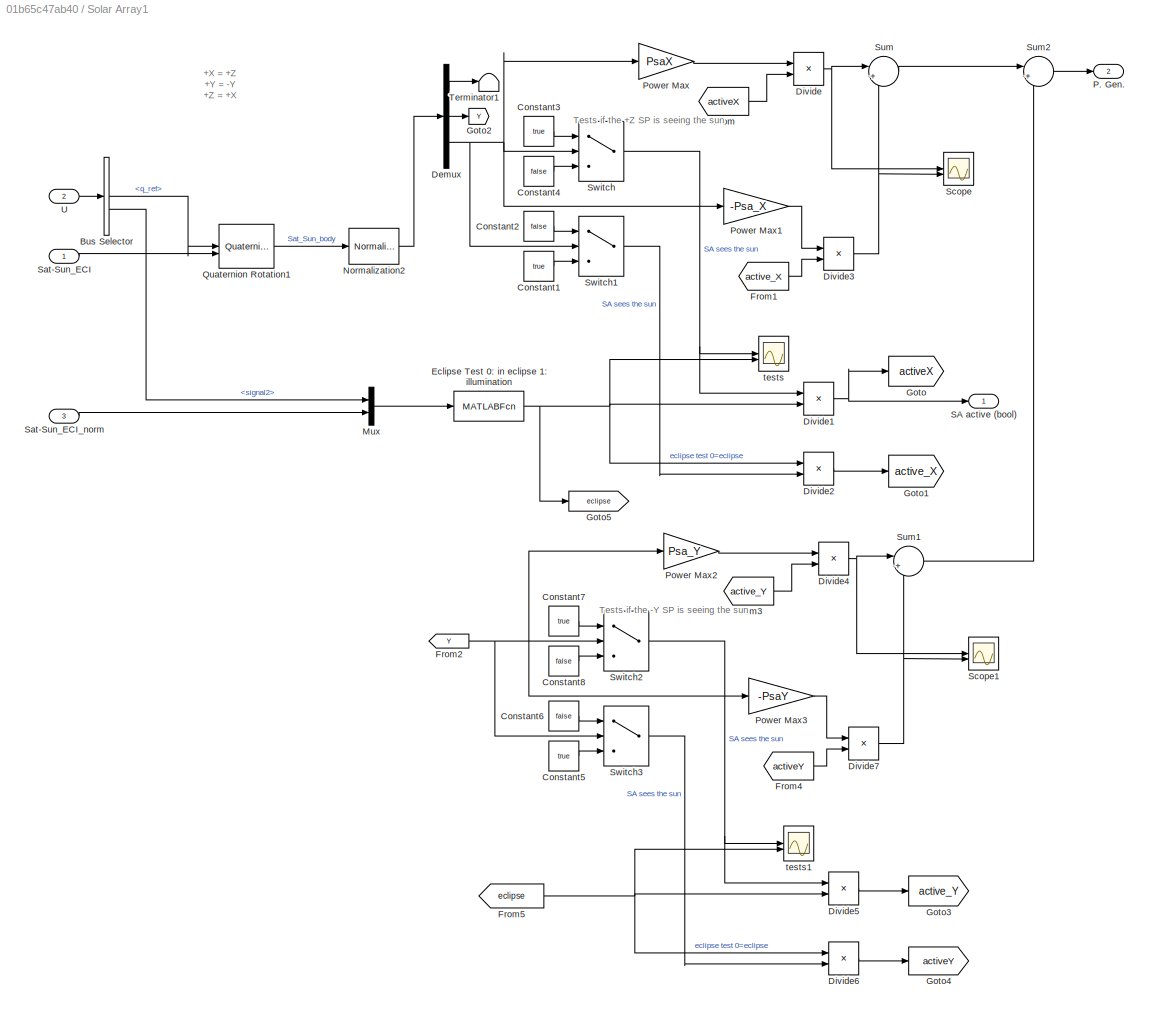
BLOCK [SubSystem] Solar Array1
BLOCK [BusSelector] Solar Array1/Bus Selector
  OutputSignals = q_ref,signal2
BLOCK [Constant] Solar Array1/Constant1
  Value = true
BLOCK [Constant] Solar Array1/Constant2
  Value = false
BLOCK [Constant] Solar Array1/Constant3
  Value = true
BLOCK [Constant] Solar Array1/Constant4
  Value = false
BLOCK [Constant] Solar Array1/Constant5
  Value = true
BLOCK [Constant] Solar Array1/Constant6
  Value = false
BLOCK [Constant] Solar Array1/Constant7
  Value = true
BLOCK [Constant] Solar Array1/Constant8
  Value = false
BLOCK [Demux] Solar Array1/Demux
  Outputs = 3
BLOCK [Product] Solar Array1/Divide
  Inputs = **
BLOCK [Product] Solar Array1/Divide1
  Inputs = **
BLOCK [Product] Solar Array1/Divide2
  Inputs = **
BLOCK [Product] Solar Array1/Divide3
  Inputs = **
BLOCK [Product] Solar Array1/Divide4
  Inputs = **
BLOCK [Product] Solar Array1/Divide5
  Inputs = **
BLOCK [Product] Solar Array1/Divide6
  Inputs = **
BLOCK [Product] Solar Array1/Divide7
  Inputs = **
BLOCK [MATLABFcn] Solar Array1/Eclipse Test 0: in eclipse 1: illumination
  MATLABFcn = eclipse_check
BLOCK [From] Solar Array1/From
  GotoTag = activeX
BLOCK [From] Solar Array1/From1
  GotoTag = active_X
BLOCK [From] Solar Array1/From2
  GotoTag = Y
BLOCK [From] Solar Array1/From3
  GotoTag = active_Y
BLOCK [From] Solar Array1/From4
  GotoTag = activeY
BLOCK [From] Solar Array1/From5
  GotoTag = eclipse
BLOCK [Goto] Solar Array1/Goto
  GotoTag = activeX
BLOCK [Goto] Solar Array1/Goto1
  GotoTag = active_X
BLOCK [Goto] Solar Array1/Goto2
  GotoTag = Y
BLOCK [Goto] Solar Array1/Goto3
  GotoTag = active_Y
BLOCK [Goto] Solar Array1/Goto4
  GotoTag = activeY
BLOCK [Goto] Solar Array1/Goto5
  GotoTag = eclipse
BLOCK [Mux] Solar Array1/Mux
  DisplayOption = bar
  Inputs = 2
BLOCK [Reference] Solar Array1/Normalization2  REF=dspmathops/Normalization
  SourceBlock = dspmathops/Normalization
  SourceType = Normalization
BLOCK [Outport] Solar Array1/P. Gen.
  Port = 2
BLOCK [Gain] Solar Array1/Power Max
  Gain = PsaX
BLOCK [Gain] Solar Array1/Power Max1
  Gain = -Psa_X
BLOCK [Gain] Solar Array1/Power Max2
  Gain = Psa_Y
BLOCK [Gain] Solar Array1/Power Max3
  Gain = -PsaY
BLOCK [Reference] Solar Array1/Quaternion Rotation1  REF=aerolibutil/Quaternion
Rotation
  SourceBlock = aerolibutil/Quaternion\nRotation
  SourceType = Quaternion Rotation
BLOCK [Outport] Solar Array1/SA active (bool)
  VectorParamsAs1DForOutWhenUnconnected = off
BLOCK [Inport] Solar Array1/Sat-Sun_ECI
BLOCK [Inport] Solar Array1/Sat-Sun_ECI_norm
  Port = 3
BLOCK [Scope] Solar Array1/Scope
  Floating = off
  NumInputPorts = 2
  ScopeSpecificationString = Simulink.scopes.TimeScopeBlockCfg('CurrentConfiguration', extmgr.ConfigurationSet(extmgr.Configuration('Core','General UI',true),extmgr.Configuration('Core','Source UI',true),extmgr.Configuration('Sources','WiredSimulink',true,'DataLoggingVariableName','ScopeData1'),extmgr.Configuration('Visuals','Time Domain',true,'SerializedDisplays',{struct('MinYLimReal','-0.62585','MaxYLimReal','5.63261','YLab...<+1562ch>
BLOCK [Scope] Solar Array1/Scope1
  Floating = off
  NumInputPorts = 2
  ScopeSpecificationString = Simulink.scopes.TimeScopeBlockCfg('CurrentConfiguration', extmgr.ConfigurationSet(extmgr.Configuration('Core','General UI',true),extmgr.Configuration('Core','Source UI',true),extmgr.Configuration('Sources','WiredSimulink',true,'DataLoggingVariableName','ScopeData1'),extmgr.Configuration('Visuals','Time Domain',true,'SerializedDisplays',{struct('MinYLimReal','-0.62585','MaxYLimReal','5.63261','YLab...<+1535ch>
BLOCK [Sum] Solar Array1/Sum
  Inputs = |++
BLOCK [Sum] Solar Array1/Sum1
  Inputs = |++
BLOCK [Sum] Solar Array1/Sum2
  Inputs = |++
BLOCK [Switch] Solar Array1/Switch
  Criteria = u2 > Threshold
  InputSameDT = off
  SaturateOnIntegerOverflow = off
BLOCK [Switch] Solar Array1/Switch1
  Criteria = u2 > Threshold
  InputSameDT = off
  SaturateOnIntegerOverflow = off
BLOCK [Switch] Solar Array1/Switch2
  Criteria = u2 > Threshold
  InputSameDT = off
  SaturateOnIntegerOverflow = off
BLOCK [Switch] Solar Array1/Switch3
  Criteria = u2 > Threshold
  InputSameDT = off
  SaturateOnIntegerOverflow = off
BLOCK [Terminator] Solar Array1/Terminator1
BLOCK [Inport] Solar Array1/U
  Port = 2
BLOCK [Scope] Solar Array1/tests
  Floating = off
  NumInputPorts = 2
  ScopeSpecificationString = Simulink.scopes.TimeScopeBlockCfg('CurrentConfiguration', extmgr.ConfigurationSet(extmgr.Configuration('Core','General UI',true),extmgr.Configuration('Core','Source UI',true),extmgr.Configuration('Sources','WiredSimulink',true,'DataLoggingVariableName','ScopeData2'),extmgr.Configuration('Visuals','Time Domain',true,'SerializedDisplays',{struct('MinYLimReal','-0.125','MaxYLimReal','1.125','YLabelRe...<+2110ch>
BLOCK [Scope] Solar Array1/tests1
  Floating = off
  NumInputPorts = 2
  ScopeSpecificationString = Simulink.scopes.TimeScopeBlockCfg('CurrentConfiguration', extmgr.ConfigurationSet(extmgr.Configuration('Core','General UI',true),extmgr.Configuration('Core','Source UI',true),extmgr.Configuration('Sources','WiredSimulink',true,'DataLoggingVariableName','ScopeData2'),extmgr.Configuration('Visuals','Time Domain',true,'SerializedDisplays',{struct('MinYLimReal','-0.125','MaxYLimReal','1.125','YLabelRe...<+2110ch>
BLOCK [SubSystem] Subsystem
BLOCK [Outport] Subsystem/Area drag
BLOCK [SubSystem] Subsystem/Calculate - Az & El Angle
BLOCK [Constant] Subsystem/Calculate - Az & El Angle/+X BRF
  Value = [1;0;0]
BLOCK [Constant] Subsystem/Calculate - Az & El Angle/+Y BRF
  Value = [0;1;0]
BLOCK [Constant] Subsystem/Calculate - Az & El Angle/+Z BRF
  Value = [0;0;1]
BLOCK [Trigonometry] Subsystem/Calculate - Az & El Angle/Acos1
  Operator = acos
BLOCK [Trigonometry] Subsystem/Calculate - Az & El Angle/Atan2
  Operator = atan2
BLOCK [Outport] Subsystem/Calculate - Az & El Angle/Az
BLOCK [Constant] Subsystem/Calculate - Az & El Angle/Constant
  Value = pi/2
BLOCK [Constant] Subsystem/Calculate - Az & El Angle/Constant1
  Value = 2*pi
BLOCK [Demux] Subsystem/Calculate - Az & El Angle/Demux
  Outputs = 3
BLOCK [Demux] Subsystem/Calculate - Az & El Angle/Demux4
  Outputs = 2
BLOCK [Outport] Subsystem/Calculate - Az & El Angle/El
  Port = 2
BLOCK [Gain] Subsystem/Calculate - Az & El Angle/Gain
  Gain = 180/pi
BLOCK [Gain] Subsystem/Calculate - Az & El Angle/Gain1
  Gain = 180/pi
BLOCK [Gain] Subsystem/Calculate - Az & El Angle/Gain4
  Gain = 180/pi
BLOCK [Gain] Subsystem/Calculate - Az & El Angle/Gain5
  Gain = 180/pi
BLOCK [Gain] Subsystem/Calculate - Az & El Angle/Gain8
  Gain = 180/pi
BLOCK [Gain] Subsystem/Calculate - Az & El Angle/Gain9
  Gain = 180/pi
BLOCK [MATLABFcn] Subsystem/Calculate - Az & El Angle/Interpreted MATLAB Function
  MATLABFcn = getDragAzEl
BLOCK [SubSystem] Subsystem/Calculate - Az & El Angle/MATLAB Function
  ErrorFcn = Stateflow.Translate.translate
  PermitHierarchicalResolution = ExplicitOnly
  SFBlockType = MATLAB Function
  TreatAsAtomicUnit = on
BLOCK [Demux] Subsystem/Calculate - Az & El Angle/MATLAB Function/ Demux 
  Outputs = 1
BLOCK [S-Function] Subsystem/Calculate - Az & El Angle/MATLAB Function/ SFunction 
  EnableBusSupport = on
  FunctionName = sf_sfun
  PortCounts = [3 2]
  SFcnIsStateOwnerBlock = off
  SFunctionDeploymentMode = off
  Tag = Stateflow S-Function 10
BLOCK [Terminator] Subsystem/Calculate - Az & El Angle/MATLAB Function/ Terminator 
BLOCK [Outport] Subsystem/Calculate - Az & El Angle/MATLAB Function/elevation
BLOCK [Inport] Subsystem/Calculate - Az & El Angle/MATLAB Function/x
BLOCK [Inport] Subsystem/Calculate - Az & El Angle/MATLAB Function/y
  Port = 2
BLOCK [Inport] Subsystem/Calculate - Az & El Angle/MATLAB Function/z
  Port = 3
BLOCK [SubSystem] Subsystem/Calculate - Az & El Angle/MATLAB Function2
  ErrorFcn = Stateflow.Translate.translate
  PermitHierarchicalResolution = ExplicitOnly
  SFBlockType = MATLAB Function
  TreatAsAtomicUnit = on
BLOCK [Demux] Subsystem/Calculate - Az & El Angle/MATLAB Function2/ Demux 
  Outputs = 1
BLOCK [S-Function] Subsystem/Calculate - Az & El Angle/MATLAB Function2/ SFunction 
  EnableBusSupport = on
  FunctionName = sf_sfun
  PortCounts = [3 3]
  SFcnIsStateOwnerBlock = off
  SFunctionDeploymentMode = off
  Tag = Stateflow S-Function 2
BLOCK [Terminator] Subsystem/Calculate - Az & El Angle/MATLAB Function2/ Terminator 
BLOCK [Outport] Subsystem/Calculate - Az & El Angle/MATLAB Function2/Az
BLOCK [Outport] Subsystem/Calculate - Az & El Angle/MATLAB Function2/El
  Port = 2
BLOCK [Inport] Subsystem/Calculate - Az & El Angle/MATLAB Function2/x
BLOCK [Inport] Subsystem/Calculate - Az & El Angle/MATLAB Function2/y
  Port = 2
BLOCK [Inport] Subsystem/Calculate - Az & El Angle/MATLAB Function2/z
  Port = 3
BLOCK [Math] Subsystem/Calculate - Az & El Angle/Mod
  Operator = mod
  OutMax = [2*pi]
  OutMin = [0]
BLOCK [Mux] Subsystem/Calculate - Az & El Angle/Mux
  DisplayOption = bar
  Inputs = 3
BLOCK [Inport] Subsystem/Calculate - Az & El Angle/Ri2o
  Port = 3
BLOCK [Product] Subsystem/Calculate - Az & El Angle/Rotation
  Multiplication = Matrix(*)
  RndMeth = Zero
BLOCK [Product] Subsystem/Calculate - Az & El Angle/Rotation1
  Multiplication = Matrix(*)
  RndMeth = Zero
BLOCK [Product] Subsystem/Calculate - Az & El Angle/Rotation2
  Multiplication = Matrix(*)
  RndMeth = Zero
BLOCK [Product] Subsystem/Calculate - Az & El Angle/Rotation3
  Multiplication = Matrix(*)
  RndMeth = Zero
BLOCK [Product] Subsystem/Calculate - Az & El Angle/Rotation4
  Multiplication = Matrix(*)
  RndMeth = Zero
BLOCK [Scope] Subsystem/Calculate - Az & El Angle/Scope
  Floating = off
  NumInputPorts = 3
  ScopeSpecificationString = Simulink.scopes.TimeScopeBlockCfg('CurrentConfiguration', extmgr.ConfigurationSet(extmgr.Configuration('Core','General UI',true),extmgr.Configuration('Core','Source UI',true),extmgr.Configuration('Sources','WiredSimulink',true,'DataLoggingVariableName','ScopeData2'),extmgr.Configuration('Visuals','Time Domain',true,'SerializedDisplays',{struct('MinYLimReal','-0.08895','MaxYLimReal','0.79556','YLab...<+1873ch>
BLOCK [Scope] Subsystem/Calculate - Az & El Angle/Scope10
  Floating = off
  NumInputPorts = 2
  ScopeSpecificationString = Simulink.scopes.TimeScopeBlockCfg('CurrentConfiguration', extmgr.ConfigurationSet(extmgr.Configuration('Core','General UI',true),extmgr.Configuration('Core','Source UI',true),extmgr.Configuration('Sources','WiredSimulink',true,'DataLoggingVariableName','ScopeData1'),extmgr.Configuration('Visuals','Time Domain',true,'SerializedDisplays',{struct('MinYLimReal','-22.5','MaxYLimReal','202.5','YLabelRea...<+2040ch>
BLOCK [Scope] Subsystem/Calculate - Az & El Angle/Scope11
  Floating = off
  NumInputPorts = 1
  ScopeSpecificationString = Simulink.scopes.TimeScopeBlockCfg('CurrentConfiguration', extmgr.ConfigurationSet(extmgr.Configuration('Core','General UI',true),extmgr.Configuration('Core','Source UI',true),extmgr.Configuration('Sources','WiredSimulink',true,'DataLoggingVariableName','ScopeData2'),extmgr.Configuration('Visuals','Time Domain',true,'SerializedDisplays',{struct('MinYLimReal','-1.25','MaxYLimReal','1.25','YLabelReal...<+1683ch>
BLOCK [Scope] Subsystem/Calculate - Az & El Angle/Scope12
  Floating = off
  NumInputPorts = 1
  ScopeSpecificationString = Simulink.scopes.TimeScopeBlockCfg('CurrentConfiguration', extmgr.ConfigurationSet(extmgr.Configuration('Core','General UI',true),extmgr.Configuration('Core','Source UI',true),extmgr.Configuration('Sources','WiredSimulink',true,'DataLoggingVariableName','ScopeData3'),extmgr.Configuration('Visuals','Time Domain',true,'SerializedDisplays',{struct('MinYLimReal','-1.25','MaxYLimReal','1.25','YLabelReal...<+1682ch>
BLOCK [Scope] Subsystem/Calculate - Az & El Angle/Scope2
  Floating = off
  NumInputPorts = 1
  ScopeSpecificationString = Simulink.scopes.TimeScopeBlockCfg('CurrentConfiguration', extmgr.ConfigurationSet(extmgr.Configuration('Core','General UI',true),extmgr.Configuration('Core','Source UI',true),extmgr.Configuration('Sources','WiredSimulink',true,'DataLoggingVariableName','ScopeData2'),extmgr.Configuration('Visuals','Time Domain',true,'SerializedDisplays',{struct('MinYLimReal','0.78539815','MaxYLimReal','0.7853983','...<+1440ch>
BLOCK [Scope] Subsystem/Calculate - Az & El Angle/Scope5
  Floating = off
  NumInputPorts = 2
  ScopeSpecificationString = Simulink.scopes.TimeScopeBlockCfg('CurrentConfiguration', extmgr.ConfigurationSet(extmgr.Configuration('Core','General UI',true),extmgr.Configuration('Core','Source UI',true),extmgr.Configuration('Sources','WiredSimulink',true,'DataLoggingVariableName','ScopeData4'),extmgr.Configuration('Visuals','Time Domain',true,'SerializedDisplays',{struct('MinYLimReal','224.999988','MaxYLimReal','225.000001',...<+2032ch>
BLOCK [Scope] Subsystem/Calculate - Az & El Angle/Scope6
  Floating = off
  NumInputPorts = 2
  ScopeSpecificationString = Simulink.scopes.TimeScopeBlockCfg('CurrentConfiguration', extmgr.ConfigurationSet(extmgr.Configuration('Core','General UI',true),extmgr.Configuration('Core','Source UI',true),extmgr.Configuration('Sources','WiredSimulink',true,'DataLoggingVariableName','ScopeData4'),extmgr.Configuration('Visuals','Time Domain',true,'SerializedDisplays',{struct('MinYLimReal','269.94934','MaxYLimReal','270.05066','Y...<+2057ch>
BLOCK [Scope] Subsystem/Calculate - Az & El Angle/Scope9
  Floating = off
  NumInputPorts = 1
  ScopeSpecificationString = Simulink.scopes.TimeScopeBlockCfg('CurrentConfiguration', extmgr.ConfigurationSet(extmgr.Configuration('Core','General UI',true),extmgr.Configuration('Core','Source UI',true),extmgr.Configuration('Sources','WiredSimulink',true,'DataLoggingVariableName','ScopeData1'),extmgr.Configuration('Visuals','Time Domain',true,'SerializedDisplays',{struct('MinYLimReal','-1.25','MaxYLimReal','1.25','YLabelReal...<+1683ch>
BLOCK [Sum] Subsystem/Calculate - Az & El Angle/Sum
  Inputs = |+-
BLOCK [Math] Subsystem/Calculate - Az & El Angle/Transpose
  Operator = transpose
BLOCK [Inport] Subsystem/Calculate - Az & El Angle/Wind unit ECI
  Port = 2
BLOCK [Inport] Subsystem/Calculate - Az & El Angle/attitude
  NameLocation = top
BLOCK [From] Subsystem/From
  GotoTag = u_wind
BLOCK [Gain] Subsystem/Gain2
BLOCK [Goto] Subsystem/Goto3
  GotoTag = u_wind
BLOCK [Lookup2D] Subsystem/Lookup - Area Drag
  ColumnIndex = LLSataero.El
  InputSameDT = off
  RowIndex = LLSataero.Az
  SaturateOnIntegerOverflow = off
  Table = LLSataero.A_drag
BLOCK [Reference] Subsystem/Quaternions to Direction Cosine Matrix  REF=sharedtransform/Quaternions to 
Direction Cosine Matrix
  SourceBlock = sharedtransform/Quaternions to \nDirection Cosine Matrix
  SourceType = Quaternion2DCM
BLOCK [Inport] Subsystem/Ri2o
  Port = 3
BLOCK [Reference] Subsystem/Vector Normal  REF=vrlib/Utilities/Normalize Vector
  SourceBlock = vrlib/Utilities/Normalize Vector
  SourceType = Normalize Vector
BLOCK [Inport] Subsystem/Velocity  (V) [m//s]
BLOCK [Inport] Subsystem/q_i2b
  Port = 2
BLOCK [Sum] Sum
  Inputs = |-+
BLOCK [Constant] Sun position ECI
  Value = [1;0;0]
BLOCK [Terminator] Terminator
BLOCK [Terminator] Terminator1
BLOCK [ToWorkspace] To Workspace1
  FixptAsFi = on
  MaxDataPoints = inf
  SampleTime = -1
  SaveFormat = Timeseries
  VariableName = Psa1
BLOCK [ToWorkspace] To Workspace2
  FixptAsFi = on
  MaxDataPoints = inf
  SampleTime = -1
  SaveFormat = Timeseries
  VariableName = beta
BLOCK [ToWorkspace] To Workspace3
  FixptAsFi = on
  MaxDataPoints = inf
  SampleTime = -1
  SaveFormat = Timeseries
  VariableName = A_drag
BLOCK [Scope] beta angle
  Floating = off
  NumInputPorts = 1
  ScopeSpecificationString = Simulink.scopes.TimeScopeBlockCfg('CurrentConfiguration', extmgr.ConfigurationSet(extmgr.Configuration('Core','General UI',true),extmgr.Configuration('Core','Source UI',true),extmgr.Configuration('Sources','WiredSimulink',true,'DataLoggingVariableName','ScopeData5'),extmgr.Configuration('Visuals','Time Domain',true,'SerializedDisplays',{struct('MinYLimReal','54.00000','MaxYLimReal','74.00000','YLa...<+1441ch>
BLOCK [Scope] drag surface
  Floating = off
  NumInputPorts = 1
  ScopeSpecificationString = Simulink.scopes.TimeScopeBlockCfg('CurrentConfiguration', extmgr.ConfigurationSet(extmgr.Configuration('Core','General UI',true),extmgr.Configuration('Core','Source UI',true),extmgr.Configuration('Sources','WiredSimulink',true,'DataLoggingVariableName','ScopeData1'),extmgr.Configuration('Visuals','Time Domain',true,'SerializedDisplays',{struct('MinYLimReal','0.0347544','MaxYLimReal','0.0347606','Y...<+1601ch>
ANNOTATION (root): +X = +Z +Y = -Y +Z = +X
ANNOTATION Attitude Reference: caution, in the B-dot mode we return the quaternion 0 and command directly the magnetotorquers
ANNOTATION Attitude Reference: modes : 1: Nadir 2: Sun-aero 3: Sun-sun 4: Drag 5: Retrograde 6: B-dot 7: Custom 8: Drag-sun 9: Sun-aero 45 10: Sun-sun 45 11: Slerp Default: nadir
ANNOTATION Attitude Reference: +X = +Z +Y = -Y +Z = +X
ANNOTATION Attitude Reference: Runs at 1Hz
ANNOTATION Attitude Reference: q_ref = q_from i to ref assuming perfect attitude control
ANNOTATION Attitude Reference/Switch Case Action Subsystem10: from I to SS
ANNOTATION Attitude Reference/Switch Case Action Subsystem11: from I to SS
ANNOTATION Attitude Reference/Switch Case Action Subsystem2: q from I to O + rotation
ANNOTATION Attitude Reference/Switch Case Action Subsystem9: q from I to O + rotation
ANNOTATION Attitude Reference/q_drag: To get angular velocity from Rotation matrix: https://en.wikipedia.org/wiki/Angular_velocity#Angular_velocity_tensor W= dA/dt * A' $W=\frac{dA}{dt} {\dot} A'=\frac{dA}{dt} {\dot} A^{T}$
ANNOTATION Attitude Reference/q_drag: DCM from Drag to Inertial
ANNOTATION Attitude Reference/q_drag: q from D to I
ANNOTATION Attitude Reference/q_drag: q from I to D
ANNOTATION Attitude Reference/q_drag: this is a rotation of 45 degrees around X axis to maximize the drag, exposing faces X and Y to the direction of velocity
ANNOTATION Attitude Reference/q_drag: x in BRF is aligned with the zenith direction z in BRF (solar panels) is aligned in the direction of velocity
ANNOTATION Attitude Reference/q_orbital: To get angular velocity from Rotation matrix: https://en.wikipedia.org/wiki/Angular_velocity#Angular_velocity_tensor W= dA/dt * A' $W=\frac{dA}{dt} {\dot} A'=\frac{dA}{dt} {\dot} A^{T}$
ANNOTATION Attitude Reference/q_orbital: DCM from Orbital to Inertial
ANNOTATION Attitude Reference/q_orbital: q from I to O
ANNOTATION Attitude Reference/q_orbital: q from O to I
ANNOTATION Attitude Reference/q_retrograde: choix : x selon V z tel que z.GS soit maximisé
ANNOTATION Attitude Reference/q_retrograde: DCM from Retro to Inertial
ANNOTATION Attitude Reference/q_retrograde: q from I to R
ANNOTATION Attitude Reference/q_retrograde: q from R to I
ANNOTATION Attitude Reference/q_sun_aero: choix : x selon V z tel que z.GS soit maximisé
ANNOTATION Attitude Reference/q_sun_aero: DCM from Sun-aero to Inertial
ANNOTATION Attitude Reference/q_sun_aero: q from I to S
ANNOTATION Attitude Reference/q_sun_aero: q from S to I
ANNOTATION Attitude Reference/q_sun_aero_rotation_x_pi//4: switch top position: no 'attitude error'
ANNOTATION Attitude Reference/q_sun_aero_rotation_x_pi//4: this is a rotation of 15 degrees around one axis to simulate off-pointing for the power generation,
ANNOTATION Attitude Reference/q_sun_aero_rotation_x_pi//4: this is a rotation of 45 degrees around X axis to maximize the power generation, exposing faces X and Y to the sun
ANNOTATION Attitude Reference/q_sun_drag: Choix: z in BRF aligned with sun direction x such that x.nadir be maximized x tel que x.V soit maximisé
ANNOTATION Attitude Reference/q_sun_drag: DCM from Sun-sun to Inertial
ANNOTATION Attitude Reference/q_sun_drag: q from I to SS
ANNOTATION Attitude Reference/q_sun_drag: q from SS to I
ANNOTATION Attitude Reference/q_sun_sun: Choix: z selon GS x tel que x.V soit maximisé
ANNOTATION Attitude Reference/q_sun_sun: DCM from Sun-sun to Inertial
ANNOTATION Attitude Reference/q_sun_sun: q from I to SS
ANNOTATION Attitude Reference/q_sun_sun: q from SS to I
ANNOTATION Attitude Reference/q_sun_sun_rot_45 deg: Choix: z selon GS x tel que x.V soit maximisé
ANNOTATION Attitude Reference/q_sun_sun_rot_45 deg: DCM from Sun-sun to Inertial
ANNOTATION Attitude Reference/q_sun_sun_rot_45 deg: q from I to SS
ANNOTATION Attitude Reference/q_sun_sun_rot_45 deg: q from SS to I
ANNOTATION Solar Array1: +X = +Z +Y = -Y +Z = +X
ANNOTATION Solar Array1: Tests if the +Z SP is seeing the sun
ANNOTATION Solar Array1: Tests if the -Y SP is seeing the sun
ANNOTATION Subsystem: ECI to body
ANNOTATION Subsystem: wind unit vector [ECI]
ANNOTATION Subsystem/Calculate - Az & El Angle: x_o = R {b to o} * x_b x_o = R {i to o} * R {b to i} * x_b x_o = R {i to o} * (R {i to b})' * x_b
LINE Acos:1 -> Gain:1
LINE Attitude Reference/Constant1:1 -> Attitude Reference/Normalize Vector:1
LINE Attitude Reference/Constant3:1 -> Attitude Reference/q_sun_aero_rotation_x_pi//1:3
LINE Attitude Reference/Constant4:1 -> Attitude Reference/Switch Case Action Subsystem11:2
LINE Attitude Reference/Constant:1 -> Attitude Reference/Manual Switch:2
LINE Attitude Reference/From10:1 -> Attitude Reference/Merge:3
LINE Attitude Reference/From11:1 -> Attitude Reference/Merge:4
LINE Attitude Reference/From12:1 -> Attitude Reference/Merge:5
LINE Attitude Reference/From13:1 -> Attitude Reference/Merge:9
LINE Attitude Reference/From14:1 -> Attitude Reference/Merge:6
LINE Attitude Reference/From15:1 -> Attitude Reference/Merge:8
LINE Attitude Reference/From16:1 -> Attitude Reference/Merge:7
LINE Attitude Reference/From17:1 -> Attitude Reference/Merge2:1
LINE Attitude Reference/From18:1 -> Attitude Reference/Merge2:2
LINE Attitude Reference/From19:1 -> Attitude Reference/Merge2:3
LINE Attitude Reference/From1:1 -> Attitude Reference/Switch Case Action Subsystem4:ifaction
LINE Attitude Reference/From20:1 -> Attitude Reference/Merge2:4
LINE Attitude Reference/From21:1 -> Attitude Reference/Merge2:5
LINE Attitude Reference/From22:1 -> Attitude Reference/Merge2:9
LINE Attitude Reference/From23:1 -> Attitude Reference/Merge2:6
LINE Attitude Reference/From24:1 -> Attitude Reference/Merge2:8
LINE Attitude Reference/From25:1 -> Attitude Reference/Merge2:7
LINE Attitude Reference/From26:1 -> Attitude Reference/Switch Case Action Subsystem:1
LINE Attitude Reference/From27:1 -> Attitude Reference/Switch Case Action Subsystem:2
LINE Attitude Reference/From28:1 -> Attitude Reference/Switch Case Action Subsystem10:ifaction
LINE Attitude Reference/From29:1 -> Attitude Reference/Switch Case Action Subsystem9:ifaction
LINE Attitude Reference/From2:1 -> Attitude Reference/Switch Case Action Subsystem3:ifaction
LINE Attitude Reference/From30:1 -> Attitude Reference/Merge:10
LINE Attitude Reference/From31:1 -> Attitude Reference/Merge2:10
LINE Attitude Reference/From32:1 -> Attitude Reference/Merge:11
LINE Attitude Reference/From33:1 -> Attitude Reference/Merge2:11
LINE Attitude Reference/From34:1 -> Attitude Reference/Switch Case Action Subsystem11:ifaction
LINE Attitude Reference/From35:1 -> Attitude Reference/Merge2:12
LINE Attitude Reference/From36:1 -> Attitude Reference/Merge:12
LINE Attitude Reference/From37:1 -> Attitude Reference/Ri2o:1
LINE Attitude Reference/From3:1 -> Attitude Reference/Switch Case Action Subsystem2:ifaction
LINE Attitude Reference/From4:1 -> Attitude Reference/Switch Case Action Subsystem1:ifaction
LINE Attitude Reference/From5:1 -> Attitude Reference/Switch Case Action Subsystem7:ifaction
LINE Attitude Reference/From6:1 -> Attitude Reference/Switch Case Action Subsystem6:ifaction
LINE Attitude Reference/From7:1 -> Attitude Reference/Switch Case Action Subsystem:ifaction
LINE Attitude Reference/From8:1 -> Attitude Reference/Merge:1
LINE Attitude Reference/From9:1 -> Attitude Reference/Merge:2
LINE Attitude Reference/From:1 -> Attitude Reference/Switch Case Action Subsystem8:ifaction
LINE Attitude Reference/MODE:1 -> Attitude Reference/Switch Case:1
NET Attitude Reference/Manual Switch1:1 -> Attitude Reference/Switch Case Action Subsystem6:1, Attitude Reference/Switch Case Action Subsystem6:2
LINE Attitude Reference/Manual Switch:1 -> Attitude Reference/Manual Switch1:1
LINE Attitude Reference/Merge2:1 -> Attitude Reference/W_ref:1
LINE Attitude Reference/Merge:1 -> Attitude Reference/q_ref:1
LINE Attitude Reference/Normalize Vector:1 -> Attitude Reference/Manual Switch:1
NET Attitude Reference/Quaternion Multiplication:1 -> Attitude Reference/Switch Case Action Subsystem9:1, Attitude Reference/q_sun_aero_rotation_x_pi//1:1
LINE Attitude Reference/Random rotation/Clock:1 -> Attitude Reference/Random rotation/Product:2
LINE Attitude Reference/Random rotation/Constant1:1 -> Attitude Reference/Random rotation/Mux:4
LINE Attitude Reference/Random rotation/Constant:1 -> Attitude Reference/Random rotation/Product:1
LINE Attitude Reference/Random rotation/Cos:1 -> Attitude Reference/Random rotation/Mux:3
LINE Attitude Reference/Random rotation/Cross Product:1 -> Attitude Reference/Random rotation/Gain2:1
LINE Attitude Reference/Random rotation/Demux:1 -> Attitude Reference/Random rotation/Matrix Multiply:2
NET Attitude Reference/Random rotation/Demux:2 -> Attitude Reference/Random rotation/Cross Product:2, Attitude Reference/Random rotation/Dot Product:2
LINE Attitude Reference/Random rotation/Dot Product:1 -> Attitude Reference/Random rotation/Gain3:1
LINE Attitude Reference/Random rotation/Gain1:1 -> Attitude Reference/Random rotation/Sum:1
LINE Attitude Reference/Random rotation/Gain2:1 -> Attitude Reference/Random rotation/Sum:2
LINE Attitude Reference/Random rotation/Gain3:1 -> Attitude Reference/Random rotation/Integrator1:1
LINE Attitude Reference/Random rotation/Gain:1 -> Attitude Reference/Random rotation/Mux:2
LINE Attitude Reference/Random rotation/Integrator1:1 -> Attitude Reference/Random rotation/Mux2:1
LINE Attitude Reference/Random rotation/Integrator:1 -> Attitude Reference/Random rotation/Mux2:2
LINE Attitude Reference/Random rotation/Manual Switch:1 -> Attitude Reference/Random rotation/qref:1
LINE Attitude Reference/Random rotation/Matrix Multiply:1 -> Attitude Reference/Random rotation/Gain1:1
NET Attitude Reference/Random rotation/Mux1:1 -> Attitude Reference/Random rotation/Cross Product:1, Attitude Reference/Random rotation/Dot Product:1, Attitude Reference/Random rotation/Matrix Multiply:1, Attitude Reference/Random rotation/wref:1
NET Attitude Reference/Random rotation/Mux2:1 -> Attitude Reference/Random rotation/Demux:1, Attitude Reference/Random rotation/Manual Switch:2
LINE Attitude Reference/Random rotation/Mux:1 -> Attitude Reference/Random rotation/Normalize Vector:1
LINE Attitude Reference/Random rotation/Normalize Vector:1 -> Attitude Reference/Random rotation/Manual Switch:1
NET Attitude Reference/Random rotation/Product:1 -> Attitude Reference/Random rotation/Cos:1, Attitude Reference/Random rotation/Sin1:1, Attitude Reference/Random rotation/Sin:1
LINE Attitude Reference/Random rotation/Sin1:1 -> Attitude Reference/Random rotation/Gain:1
LINE Attitude Reference/Random rotation/Sin:1 -> Attitude Reference/Random rotation/Mux:1
LINE Attitude Reference/Random rotation/Sum:1 -> Attitude Reference/Random rotation/Integrator:1
LINE Attitude Reference/Random rotation/wx:1 -> Attitude Reference/Random rotation/Mux1:1
LINE Attitude Reference/Random rotation/wy:1 -> Attitude Reference/Random rotation/Mux1:2
LINE Attitude Reference/Random rotation/wz:1 -> Attitude Reference/Random rotation/Mux1:3
LINE Attitude Reference/Random rotation:1 -> Attitude Reference/Manual Switch1:2
LINE Attitude Reference/Random rotation:2 -> Attitude Reference/Terminator:1
LINE Attitude Reference/Reshape1:1 -> Attitude Reference/Switch Case Action Subsystem7:1
NET Attitude Reference/Sun_ECI:1 -> Attitude Reference/q_retrograde:2, Attitude Reference/q_sun_aero:1, Attitude Reference/q_sun_drag:2, Attitude Reference/q_sun_sun:2, Attitude Reference/q_sun_sun_rot_45 deg:2
LINE Attitude Reference/Switch Case Action Subsystem/Q_orbit:1 -> Attitude Reference/Switch Case Action Subsystem/Out1:1
LINE Attitude Reference/Switch Case Action Subsystem/W_orbit1:1 -> Attitude Reference/Switch Case Action Subsystem/Out3:1
LINE Attitude Reference/Switch Case Action Subsystem1/Q_retro:1 -> Attitude Reference/Switch Case Action Subsystem1/Out1:1
LINE Attitude Reference/Switch Case Action Subsystem1/W_retro:1 -> Attitude Reference/Switch Case Action Subsystem1/Out3:1
LINE Attitude Reference/Switch Case Action Subsystem10/Q_roll:1 -> Attitude Reference/Switch Case Action Subsystem10/Out1:1
LINE Attitude Reference/Switch Case Action Subsystem10/W_roll:1 -> Attitude Reference/Switch Case Action Subsystem10/Out3:1
LINE Attitude Reference/Switch Case Action Subsystem10:1 -> Attitude Reference/Goto28:1
LINE Attitude Reference/Switch Case Action Subsystem10:2 -> Attitude Reference/Goto32:1
LINE Attitude Reference/Switch Case Action Subsystem11/Q_roll:1 -> Attitude Reference/Switch Case Action Subsystem11/Out1:1
LINE Attitude Reference/Switch Case Action Subsystem11/W_roll:1 -> Attitude Reference/Switch Case Action Subsystem11/Out3:1
LINE Attitude Reference/Switch Case Action Subsystem11:1 -> Attitude Reference/Goto35:1
LINE Attitude Reference/Switch Case Action Subsystem11:2 -> Attitude Reference/Goto36:1
LINE Attitude Reference/Switch Case Action Subsystem1:1 -> Attitude Reference/Goto9:1
LINE Attitude Reference/Switch Case Action Subsystem1:2 -> Attitude Reference/Goto18:1
LINE Attitude Reference/Switch Case Action Subsystem2/Q_drag:1 -> Attitude Reference/Switch Case Action Subsystem2/Out1:1
LINE Attitude Reference/Switch Case Action Subsystem2/W_drag:1 -> Attitude Reference/Switch Case Action Subsystem2/W:1
LINE Attitude Reference/Switch Case Action Subsystem2:1 -> Attitude Reference/Goto10:1
LINE Attitude Reference/Switch Case Action Subsystem2:2 -> Attitude Reference/Goto19:1
LINE Attitude Reference/Switch Case Action Subsystem3/Q_sun_sun:1 -> Attitude Reference/Switch Case Action Subsystem3/Out1:1
LINE Attitude Reference/Switch Case Action Subsystem3/W_sun_sun:1 -> Attitude Reference/Switch Case Action Subsystem3/Out3:1
LINE Attitude Reference/Switch Case Action Subsystem3:1 -> Attitude Reference/Goto11:1
LINE Attitude Reference/Switch Case Action Subsystem3:2 -> Attitude Reference/Goto20:1
LINE Attitude Reference/Switch Case Action Subsystem4/Q_sun_aero:1 -> Attitude Reference/Switch Case Action Subsystem4/Out1:1
LINE Attitude Reference/Switch Case Action Subsystem4/W_sun_aero:1 -> Attitude Reference/Switch Case Action Subsystem4/Out3:1
LINE Attitude Reference/Switch Case Action Subsystem4:1 -> Attitude Reference/Goto12:1
LINE Attitude Reference/Switch Case Action Subsystem4:2 -> Attitude Reference/Goto21:1
LINE Attitude Reference/Switch Case Action Subsystem5/In1:1 -> Attitude Reference/Switch Case Action Subsystem5/Out1:1
LINE Attitude Reference/Switch Case Action Subsystem5/W_orbit:1 -> Attitude Reference/Switch Case Action Subsystem5/Out3:1
LINE Attitude Reference/Switch Case Action Subsystem5:1 -> Attitude Reference/Goto8:1
LINE Attitude Reference/Switch Case Action Subsystem5:2 -> Attitude Reference/Goto17:1
LINE Attitude Reference/Switch Case Action Subsystem6/Derivative:1 -> Attitude Reference/Switch Case Action Subsystem6/Matrix Multiply:1
LINE Attitude Reference/Switch Case Action Subsystem6/In1:1 -> Attitude Reference/Switch Case Action Subsystem6/Out1:1
LINE Attitude Reference/Switch Case Action Subsystem6/In2:1 -> Attitude Reference/Switch Case Action Subsystem6/Quaternions to Direction Cosine Matrix:1
LINE Attitude Reference/Switch Case Action Subsystem6/Matrix Multiply:1 -> Attitude Reference/Switch Case Action Subsystem6/gets vector from Skew Matrix:1
LINE Attitude Reference/Switch Case Action Subsystem6/Quaternions to Direction Cosine Matrix:1 -> Attitude Reference/Switch Case Action Subsystem6/Transpose1:1
NET Attitude Reference/Switch Case Action Subsystem6/Transpose1:1 -> Attitude Reference/Switch Case Action Subsystem6/Matrix Multiply:2, Attitude Reference/Switch Case Action Subsystem6/Transpose:1
LINE Attitude Reference/Switch Case Action Subsystem6/Transpose:1 -> Attitude Reference/Switch Case Action Subsystem6/Derivative:1
LINE Attitude Reference/Switch Case Action Subsystem6/gets vector from Skew Matrix:1 -> Attitude Reference/Switch Case Action Subsystem6/W_custom:1
LINE Attitude Reference/Switch Case Action Subsystem6:1 -> Attitude Reference/Goto15:1
LINE Attitude Reference/Switch Case Action Subsystem6:2 -> Attitude Reference/Goto24:1
LINE Attitude Reference/Switch Case Action Subsystem7/In1:1 -> Attitude Reference/Switch Case Action Subsystem7/Out1:1
LINE Attitude Reference/Switch Case Action Subsystem7/In2:1 -> Attitude Reference/Switch Case Action Subsystem7/Out2:1
LINE Attitude Reference/Switch Case Action Subsystem7:1 -> Attitude Reference/Goto14:1
LINE Attitude Reference/Switch Case Action Subsystem7:2 -> Attitude Reference/Goto23:1
LINE Attitude Reference/Switch Case Action Subsystem8/Q_retro:1 -> Attitude Reference/Switch Case Action Subsystem8/Out1:1
LINE Attitude Reference/Switch Case Action Subsystem8/W_retro:1 -> Attitude Reference/Switch Case Action Subsystem8/Out3:1
LINE Attitude Reference/Switch Case Action Subsystem8:1 -> Attitude Reference/Goto13:1
LINE Attitude Reference/Switch Case Action Subsystem8:2 -> Attitude Reference/Goto22:1
LINE Attitude Reference/Switch Case Action Subsystem9/Q_rot:1 -> Attitude Reference/Switch Case Action Subsystem9/Out1:1
LINE Attitude Reference/Switch Case Action Subsystem9/W_rot:1 -> Attitude Reference/Switch Case Action Subsystem9/W:1
LINE Attitude Reference/Switch Case Action Subsystem9:1 -> Attitude Reference/Goto30:1
LINE Attitude Reference/Switch Case Action Subsystem9:2 -> Attitude Reference/Goto31:1
LINE Attitude Reference/Switch Case Action Subsystem:1 -> Attitude Reference/Goto16:1
LINE Attitude Reference/Switch Case Action Subsystem:2 -> Attitude Reference/Goto25:1
LINE Attitude Reference/Switch Case:1 -> Attitude Reference/Switch Case Action Subsystem5:ifaction
LINE Attitude Reference/Switch Case:10 -> Attitude Reference/Goto33:1
LINE Attitude Reference/Switch Case:11 -> Attitude Reference/Goto34:1
LINE Attitude Reference/Switch Case:12 -> Attitude Reference/Goto7:1
LINE Attitude Reference/Switch Case:2 -> Attitude Reference/Goto1:1
LINE Attitude Reference/Switch Case:3 -> Attitude Reference/Goto2:1
LINE Attitude Reference/Switch Case:4 -> Attitude Reference/Goto3:1
LINE Attitude Reference/Switch Case:5 -> Attitude Reference/Goto4:1
LINE Attitude Reference/Switch Case:6 -> Attitude Reference/Goto5:1
LINE Attitude Reference/Switch Case:7 -> Attitude Reference/Goto6:1
LINE Attitude Reference/Switch Case:8 -> Attitude Reference/Goto:1
LINE Attitude Reference/Switch Case:9 -> Attitude Reference/Goto29:1
NET Attitude Reference/VxVyVz_ECI:1 -> Attitude Reference/q_drag:2, Attitude Reference/q_orbital:2, Attitude Reference/q_retrograde:1, Attitude Reference/q_sun_aero:2, Attitude Reference/q_sun_sun:1
NET Attitude Reference/XYZ_ECI:1 -> Attitude Reference/q_drag:1, Attitude Reference/q_orbital:1, Attitude Reference/q_sun_aero:3, Attitude Reference/q_sun_drag:1, Attitude Reference/q_sun_sun_rot_45 deg:1
LINE Attitude Reference/q_drag/3x3 Cross Product:1 -> Attitude Reference/q_drag/Gain1:1
LINE Attitude Reference/q_drag/<VxVyVz_ECI>:1 -> Attitude Reference/q_drag/Normalization1:1
LINE Attitude Reference/q_drag/<XYZ_ECI>:1 -> Attitude Reference/q_drag/Normalization:1
LINE Attitude Reference/q_drag/Constant:1 -> Attitude Reference/q_drag/Product:1
LINE Attitude Reference/q_drag/Derivative:1 -> Attitude Reference/q_drag/Matrix Multiply:1
LINE Attitude Reference/q_drag/Direction Cosine Matrix to Quaternions:1 -> Attitude Reference/q_drag/Quaternion Inverse:1
LINE Attitude Reference/q_drag/Gain1:1 -> Attitude Reference/q_drag/Reshape2:1
NET Attitude Reference/q_drag/Gain:1 -> Attitude Reference/q_drag/3x3 Cross Product:2, Attitude Reference/q_drag/Vector Concatenate:1
LINE Attitude Reference/q_drag/Manual Switch:1 -> Attitude Reference/q_drag/Q_drag:1
LINE Attitude Reference/q_drag/Matrix Multiply:1 -> Attitude Reference/q_drag/gets vector from Skew Matrix:1
LINE Attitude Reference/q_drag/Normalization1:1 -> Attitude Reference/q_drag/Reshape1:1
LINE Attitude Reference/q_drag/Normalization:1 -> Attitude Reference/q_drag/Reshape:1
LINE Attitude Reference/q_drag/Product:1 -> Attitude Reference/q_drag/Reshape4:1
NET Attitude Reference/q_drag/Quaternion Inverse:1 -> Attitude Reference/q_drag/Manual Switch:2, Attitude Reference/q_drag/Quaternion Multiplication:1
LINE Attitude Reference/q_drag/Quaternion Multiplication:1 -> Attitude Reference/q_drag/Manual Switch:1
NET Attitude Reference/q_drag/Reshape1:1 -> Attitude Reference/q_drag/3x3 Cross Product:1, Attitude Reference/q_drag/Vector Concatenate:3
LINE Attitude Reference/q_drag/Reshape2:1 -> Attitude Reference/q_drag/Vector Concatenate:2
NET Attitude Reference/q_drag/Reshape3:1 -> Attitude Reference/q_drag/Matrix Multiply:2, Attitude Reference/q_drag/Transpose:1
LINE Attitude Reference/q_drag/Reshape4:1 -> Attitude Reference/q_drag/Vector Concatenate1:2
LINE Attitude Reference/q_drag/Reshape:1 -> Attitude Reference/q_drag/Gain:1
LINE Attitude Reference/q_drag/Transpose:1 -> Attitude Reference/q_drag/Derivative:1
LINE Attitude Reference/q_drag/Vector Concatenate1:1 -> Attitude Reference/q_drag/Quaternion Multiplication:2
NET Attitude Reference/q_drag/Vector Concatenate:1 -> Attitude Reference/q_drag/Direction Cosine Matrix to Quaternions:1, Attitude Reference/q_drag/Reshape3:1
LINE Attitude Reference/q_drag/cos pi//2:1 -> Attitude Reference/q_drag/Vector Concatenate1:1
LINE Attitude Reference/q_drag/gets vector from Skew Matrix:1 -> Attitude Reference/q_drag/W_drag:1
LINE Attitude Reference/q_drag/sin pi//4:1 -> Attitude Reference/q_drag/Product:2
LINE Attitude Reference/q_drag:1 -> Attitude Reference/Switch Case Action Subsystem2:1
LINE Attitude Reference/q_drag:2 -> Attitude Reference/Switch Case Action Subsystem2:2
LINE Attitude Reference/q_orbital/3x3 Cross Product:1 -> Attitude Reference/q_orbital/Gain1:1
LINE Attitude Reference/q_orbital/<VxVyVz_ECI>:1 -> Attitude Reference/q_orbital/Normalization1:1
LINE Attitude Reference/q_orbital/<XYZ_ECI>:1 -> Attitude Reference/q_orbital/Normalization:1
LINE Attitude Reference/q_orbital/Derivative:1 -> Attitude Reference/q_orbital/Matrix Multiply:1
LINE Attitude Reference/q_orbital/Direction Cosine Matrix to Quaternions:1 -> Attitude Reference/q_orbital/Quaternion Inverse:1
LINE Attitude Reference/q_orbital/Gain1:1 -> Attitude Reference/q_orbital/Reshape2:1
NET Attitude Reference/q_orbital/Gain:1 -> Attitude Reference/q_orbital/3x3 Cross Product:2, Attitude Reference/q_orbital/Vector Concatenate:3
LINE Attitude Reference/q_orbital/Matrix Multiply:1 -> Attitude Reference/q_orbital/gets vector from Skew Matrix:1
LINE Attitude Reference/q_orbital/Normalization1:1 -> Attitude Reference/q_orbital/Reshape1:1
LINE Attitude Reference/q_orbital/Normalization:1 -> Attitude Reference/q_orbital/Reshape:1
LINE Attitude Reference/q_orbital/Quaternion Inverse:1 -> Attitude Reference/q_orbital/Q_orbit:1
NET Attitude Reference/q_orbital/Reshape1:1 -> Attitude Reference/q_orbital/3x3 Cross Product:1, Attitude Reference/q_orbital/Vector Concatenate:1
LINE Attitude Reference/q_orbital/Reshape2:1 -> Attitude Reference/q_orbital/Vector Concatenate:2
NET Attitude Reference/q_orbital/Reshape3:1 -> Attitude Reference/q_orbital/Matrix Multiply:2, Attitude Reference/q_orbital/Transpose:1
LINE Attitude Reference/q_orbital/Reshape:1 -> Attitude Reference/q_orbital/Gain:1
NET Attitude Reference/q_orbital/Transpose:1 -> Attitude Reference/q_orbital/Derivative:1, Attitude Reference/q_orbital/Ri2o:1
NET Attitude Reference/q_orbital/Vector Concatenate:1 -> Attitude Reference/q_orbital/Direction Cosine Matrix to Quaternions:1, Attitude Reference/q_orbital/Reshape3:1
LINE Attitude Reference/q_orbital/gets vector from Skew Matrix:1 -> Attitude Reference/q_orbital/W_orbit:1
NET Attitude Reference/q_orbital:1 -> Attitude Reference/Goto26:1, Attitude Reference/Switch Case Action Subsystem5:1
NET Attitude Reference/q_orbital:2 -> Attitude Reference/Goto27:1, Attitude Reference/Switch Case Action Subsystem5:2
LINE Attitude Reference/q_orbital:3 -> Attitude Reference/Goto37:1
LINE Attitude Reference/q_retrograde/<VxVyVz_ECI>:1 -> Attitude Reference/q_retrograde/Normalization1:1
LINE Attitude Reference/q_retrograde/Cross Product:1 -> Attitude Reference/q_retrograde/Reshape1:1
LINE Attitude Reference/q_retrograde/Derivative:1 -> Attitude Reference/q_retrograde/Matrix Multiply:1
LINE Attitude Reference/q_retrograde/Direction Cosine Matrix to Quaternions:1 -> Attitude Reference/q_retrograde/Quaternion Inverse:1
LINE Attitude Reference/q_retrograde/Dot Product:1 -> Attitude Reference/q_retrograde/Product:2
NET Attitude Reference/q_retrograde/Gain:1 -> Attitude Reference/q_retrograde/Dot Product:1, Attitude Reference/q_retrograde/Product:1, Attitude Reference/q_retrograde/Reshape3:1
LINE Attitude Reference/q_retrograde/Matrix Multiply:1 -> Attitude Reference/q_retrograde/gets vector from Skew Matrix:1
LINE Attitude Reference/q_retrograde/Normalization1:1 -> Attitude Reference/q_retrograde/Gain:1
LINE Attitude Reference/q_retrograde/Normalization2:1 -> Attitude Reference/q_retrograde/Reshape2:1
LINE Attitude Reference/q_retrograde/Plus:1 -> Attitude Reference/q_retrograde/Normalization2:1
LINE Attitude Reference/q_retrograde/Product:1 -> Attitude Reference/q_retrograde/Plus:1
LINE Attitude Reference/q_retrograde/Quaternion Inverse:1 -> Attitude Reference/q_retrograde/Q_retro:1
LINE Attitude Reference/q_retrograde/Reshape1:1 -> Attitude Reference/q_retrograde/Vector Concatenate:2
NET Attitude Reference/q_retrograde/Reshape2:1 -> Attitude Reference/q_retrograde/Cross Product:1, Attitude Reference/q_retrograde/Vector Concatenate:3
NET Attitude Reference/q_retrograde/Reshape3:1 -> Attitude Reference/q_retrograde/Cross Product:2, Attitude Reference/q_retrograde/Vector Concatenate:1
NET Attitude Reference/q_retrograde/Reshape:1 -> Attitude Reference/q_retrograde/Matrix Multiply:2, Attitude Reference/q_retrograde/Transpose:1
NET Attitude Reference/q_retrograde/Sun_ECI:1 -> Attitude Reference/q_retrograde/Dot Product:2, Attitude Reference/q_retrograde/Plus:2
LINE Attitude Reference/q_retrograde/Transpose:1 -> Attitude Reference/q_retrograde/Derivative:1
NET Attitude Reference/q_retrograde/Vector Concatenate:1 -> Attitude Reference/q_retrograde/Direction Cosine Matrix to Quaternions:1, Attitude Reference/q_retrograde/Reshape:1
LINE Attitude Reference/q_retrograde/gets vector from Skew Matrix:1 -> Attitude Reference/q_retrograde/W_retro:1
LINE Attitude Reference/q_retrograde:1 -> Attitude Reference/Switch Case Action Subsystem1:1
LINE Attitude Reference/q_retrograde:2 -> Attitude Reference/Switch Case Action Subsystem1:2
LINE Attitude Reference/q_sun_aero/<VxVyVz_ECI>:1 -> Attitude Reference/q_sun_aero/Normalization1:1
LINE Attitude Reference/q_sun_aero/<XYZ_ECI>:1 -> Attitude Reference/q_sun_aero/Normalization:1
LINE Attitude Reference/q_sun_aero/Cross Product:1 -> Attitude Reference/q_sun_aero/Reshape1:1
LINE Attitude Reference/q_sun_aero/Derivative:1 -> Attitude Reference/q_sun_aero/Matrix Multiply:1
LINE Attitude Reference/q_sun_aero/Direction Cosine Matrix to Quaternions:1 -> Attitude Reference/q_sun_aero/Quaternion Inverse:1
NET Attitude Reference/q_sun_aero/Dot Product1:1 -> Attitude Reference/q_sun_aero/Scope:1, Attitude Reference/q_sun_aero/Switch:2
LINE Attitude Reference/q_sun_aero/Dot Product:1 -> Attitude Reference/q_sun_aero/Product:2
LINE Attitude Reference/q_sun_aero/Gain:1 -> Attitude Reference/q_sun_aero/Switch:3
LINE Attitude Reference/q_sun_aero/Matrix Multiply:1 -> Attitude Reference/q_sun_aero/gets vector from Skew Matrix:1
NET Attitude Reference/q_sun_aero/Normalization1:1 -> Attitude Reference/q_sun_aero/Dot Product:1, Attitude Reference/q_sun_aero/Product:1, Attitude Reference/q_sun_aero/Reshape3:1
NET Attitude Reference/q_sun_aero/Normalization2:1 -> Attitude Reference/q_sun_aero/Gain:1, Attitude Reference/q_sun_aero/Switch:1
LINE Attitude Reference/q_sun_aero/Normalization:1 -> Attitude Reference/q_sun_aero/Reshape4:1
LINE Attitude Reference/q_sun_aero/Plus:1 -> Attitude Reference/q_sun_aero/Normalization2:1
LINE Attitude Reference/q_sun_aero/Product:1 -> Attitude Reference/q_sun_aero/Plus:1
LINE Attitude Reference/q_sun_aero/Quaternion Inverse:1 -> Attitude Reference/q_sun_aero/Q_sun_aero:1
LINE Attitude Reference/q_sun_aero/Reshape1:1 -> Attitude Reference/q_sun_aero/Vector Concatenate:2
NET Attitude Reference/q_sun_aero/Reshape2:1 -> Attitude Reference/q_sun_aero/Cross Product:1, Attitude Reference/q_sun_aero/Scope1:1, Attitude Reference/q_sun_aero/Vector Concatenate:3
NET Attitude Reference/q_sun_aero/Reshape3:1 -> Attitude Reference/q_sun_aero/Cross Product:2, Attitude Reference/q_sun_aero/Vector Concatenate:1
LINE Attitude Reference/q_sun_aero/Reshape4:1 -> Attitude Reference/q_sun_aero/Dot Product1:2
NET Attitude Reference/q_sun_aero/Reshape:1 -> Attitude Reference/q_sun_aero/Matrix Multiply:2, Attitude Reference/q_sun_aero/Transpose:1
NET Attitude Reference/q_sun_aero/Sun_ECI:1 -> Attitude Reference/q_sun_aero/Dot Product1:1, Attitude Reference/q_sun_aero/Dot Product:2, Attitude Reference/q_sun_aero/Plus:2
LINE Attitude Reference/q_sun_aero/Switch:1 -> Attitude Reference/q_sun_aero/Reshape2:1
LINE Attitude Reference/q_sun_aero/Transpose:1 -> Attitude Reference/q_sun_aero/Derivative:1
NET Attitude Reference/q_sun_aero/Vector Concatenate:1 -> Attitude Reference/q_sun_aero/Direction Cosine Matrix to Quaternions:1, Attitude Reference/q_sun_aero/Reshape:1
LINE Attitude Reference/q_sun_aero/gets vector from Skew Matrix:1 -> Attitude Reference/q_sun_aero/W_sun_aero:1
NET Attitude Reference/q_sun_aero:1 -> Attitude Reference/Quaternion Multiplication:1, Attitude Reference/Switch Case Action Subsystem4:1
NET Attitude Reference/q_sun_aero:2 -> Attitude Reference/Switch Case Action Subsystem4:2, Attitude Reference/Switch Case Action Subsystem9:2
LINE Attitude Reference/q_sun_aero_rotation_x_pi//1/In3:1 -> Attitude Reference/q_sun_aero_rotation_x_pi//1/Quaternion Interpolation:3
LINE Attitude Reference/q_sun_aero_rotation_x_pi//1/Q_sun_aero:1 -> Attitude Reference/q_sun_aero_rotation_x_pi//1/Quaternion Normalize:1
LINE Attitude Reference/q_sun_aero_rotation_x_pi//1/Q_sun_sun:1 -> Attitude Reference/q_sun_aero_rotation_x_pi//1/Quaternion Normalize1:1
LINE Attitude Reference/q_sun_aero_rotation_x_pi//1/Quaternion Interpolation:1 -> Attitude Reference/q_sun_aero_rotation_x_pi//1/Q_slerp:1
LINE Attitude Reference/q_sun_aero_rotation_x_pi//1/Quaternion Normalize1:1 -> Attitude Reference/q_sun_aero_rotation_x_pi//1/Quaternion Interpolation:2
LINE Attitude Reference/q_sun_aero_rotation_x_pi//1/Quaternion Normalize:1 -> Attitude Reference/q_sun_aero_rotation_x_pi//1/Quaternion Interpolation:1
LINE Attitude Reference/q_sun_aero_rotation_x_pi//1:1 -> Attitude Reference/Switch Case Action Subsystem11:1
LINE Attitude Reference/q_sun_aero_rotation_x_pi//4/Constant2:1 -> Attitude Reference/q_sun_aero_rotation_x_pi//4/Product2:1
LINE Attitude Reference/q_sun_aero_rotation_x_pi//4/Constant:1 -> Attitude Reference/q_sun_aero_rotation_x_pi//4/Product:1
LINE Attitude Reference/q_sun_aero_rotation_x_pi//4/Manual Switch:1 -> Attitude Reference/q_sun_aero_rotation_x_pi//4/Q_rot:1
LINE Attitude Reference/q_sun_aero_rotation_x_pi//4/Product2:1 -> Attitude Reference/q_sun_aero_rotation_x_pi//4/Reshape3:1
LINE Attitude Reference/q_sun_aero_rotation_x_pi//4/Product:1 -> Attitude Reference/q_sun_aero_rotation_x_pi//4/Reshape1:1
LINE Attitude Reference/q_sun_aero_rotation_x_pi//4/Quaternion Multiplication:1 -> Attitude Reference/q_sun_aero_rotation_x_pi//4/Manual Switch:2
LINE Attitude Reference/q_sun_aero_rotation_x_pi//4/Reshape1:1 -> Attitude Reference/q_sun_aero_rotation_x_pi//4/Vector Concatenate1:2
LINE Attitude Reference/q_sun_aero_rotation_x_pi//4/Reshape3:1 -> Attitude Reference/q_sun_aero_rotation_x_pi//4/Vector Concatenate3:2
NET Attitude Reference/q_sun_aero_rotation_x_pi//4/Vector Concatenate1:1 -> Attitude Reference/q_sun_aero_rotation_x_pi//4/Manual Switch:1, Attitude Reference/q_sun_aero_rotation_x_pi//4/Quaternion Multiplication:1
LINE Attitude Reference/q_sun_aero_rotation_x_pi//4/Vector Concatenate3:1 -> Attitude Reference/q_sun_aero_rotation_x_pi//4/Quaternion Multiplication:2
LINE Attitude Reference/q_sun_aero_rotation_x_pi//4/cos 15:1 -> Attitude Reference/q_sun_aero_rotation_x_pi//4/Vector Concatenate3:1
LINE Attitude Reference/q_sun_aero_rotation_x_pi//4/cos pi//2:1 -> Attitude Reference/q_sun_aero_rotation_x_pi//4/Vector Concatenate1:1
LINE Attitude Reference/q_sun_aero_rotation_x_pi//4/sin 15:1 -> Attitude Reference/q_sun_aero_rotation_x_pi//4/Product2:2
LINE Attitude Reference/q_sun_aero_rotation_x_pi//4/sin pi//4:1 -> Attitude Reference/q_sun_aero_rotation_x_pi//4/Product:2
LINE Attitude Reference/q_sun_aero_rotation_x_pi//4:1 -> Attitude Reference/Quaternion Multiplication:2
LINE Attitude Reference/q_sun_drag/<XYZ_ECI>:1 -> Attitude Reference/q_sun_drag/Normalization1:1
LINE Attitude Reference/q_sun_drag/Cross Product1:1 -> Attitude Reference/q_sun_drag/Reshape4:1
LINE Attitude Reference/q_sun_drag/Derivative:1 -> Attitude Reference/q_sun_drag/Matrix Multiply:1
LINE Attitude Reference/q_sun_drag/Direction Cosine Matrix to Quaternions1:1 -> Attitude Reference/q_sun_drag/Quaternion Inverse1:1
LINE Attitude Reference/q_sun_drag/Dot Product1:1 -> Attitude Reference/q_sun_drag/Product1:1
NET Attitude Reference/q_sun_drag/Gain:1 -> Attitude Reference/q_sun_drag/Dot Product1:1, Attitude Reference/q_sun_drag/Plus1:1
LINE Attitude Reference/q_sun_drag/Matrix Multiply:1 -> Attitude Reference/q_sun_drag/gets vector from Skew Matrix:1
LINE Attitude Reference/q_sun_drag/Normalization1:1 -> Attitude Reference/q_sun_drag/Reshape1:1
NET Attitude Reference/q_sun_drag/Normalization3:1 -> Attitude Reference/q_sun_drag/Dot Product1:2, Attitude Reference/q_sun_drag/Product1:2, Attitude Reference/q_sun_drag/Reshape6:1
LINE Attitude Reference/q_sun_drag/Normalization4:1 -> Attitude Reference/q_sun_drag/Reshape5:1
LINE Attitude Reference/q_sun_drag/Plus1:1 -> Attitude Reference/q_sun_drag/Normalization4:1
LINE Attitude Reference/q_sun_drag/Product1:1 -> Attitude Reference/q_sun_drag/Plus1:2
LINE Attitude Reference/q_sun_drag/Quaternion Inverse1:1 -> Attitude Reference/q_sun_drag/Q_sun_drag:1
LINE Attitude Reference/q_sun_drag/Reshape1:1 -> Attitude Reference/q_sun_drag/Gain:1
LINE Attitude Reference/q_sun_drag/Reshape4:1 -> Attitude Reference/q_sun_drag/Vector Concatenate1:2
NET Attitude Reference/q_sun_drag/Reshape5:1 -> Attitude Reference/q_sun_drag/Cross Product1:2, Attitude Reference/q_sun_drag/Vector Concatenate1:1
NET Attitude Reference/q_sun_drag/Reshape6:1 -> Attitude Reference/q_sun_drag/Cross Product1:1, Attitude Reference/q_sun_drag/Vector Concatenate1:3
NET Attitude Reference/q_sun_drag/Reshape:1 -> Attitude Reference/q_sun_drag/Matrix Multiply:2, Attitude Reference/q_sun_drag/Transpose:1
LINE Attitude Reference/q_sun_drag/Sun_ECI:1 -> Attitude Reference/q_sun_drag/Normalization3:1
LINE Attitude Reference/q_sun_drag/Transpose:1 -> Attitude Reference/q_sun_drag/Derivative:1
NET Attitude Reference/q_sun_drag/Vector Concatenate1:1 -> Attitude Reference/q_sun_drag/Direction Cosine Matrix to Quaternions1:1, Attitude Reference/q_sun_drag/Reshape:1
LINE Attitude Reference/q_sun_drag/gets vector from Skew Matrix:1 -> Attitude Reference/q_sun_drag/W_sun_drag:1
LINE Attitude Reference/q_sun_drag:1 -> Attitude Reference/Switch Case Action Subsystem8:1
LINE Attitude Reference/q_sun_drag:2 -> Attitude Reference/Switch Case Action Subsystem8:2
NET Attitude Reference/q_sun_sun/<VxVyVz_ECI>:1 -> Attitude Reference/q_sun_sun/Dot Product1:1, Attitude Reference/q_sun_sun/Plus1:1
LINE Attitude Reference/q_sun_sun/Cross Product1:1 -> Attitude Reference/q_sun_sun/Reshape4:1
LINE Attitude Reference/q_sun_sun/Derivative:1 -> Attitude Reference/q_sun_sun/Matrix Multiply:1
LINE Attitude Reference/q_sun_sun/Direction Cosine Matrix to Quaternions1:1 -> Attitude Reference/q_sun_sun/Quaternion Inverse1:1
LINE Attitude Reference/q_sun_sun/Dot Product1:1 -> Attitude Reference/q_sun_sun/Product1:1
LINE Attitude Reference/q_sun_sun/Matrix Multiply:1 -> Attitude Reference/q_sun_sun/gets vector from Skew Matrix:1
NET Attitude Reference/q_sun_sun/Normalization3:1 -> Attitude Reference/q_sun_sun/Dot Product1:2, Attitude Reference/q_sun_sun/Product1:2, Attitude Reference/q_sun_sun/Reshape6:1
LINE Attitude Reference/q_sun_sun/Normalization4:1 -> Attitude Reference/q_sun_sun/Reshape5:1
LINE Attitude Reference/q_sun_sun/Plus1:1 -> Attitude Reference/q_sun_sun/Normalization4:1
LINE Attitude Reference/q_sun_sun/Product1:1 -> Attitude Reference/q_sun_sun/Plus1:2
LINE Attitude Reference/q_sun_sun/Quaternion Inverse1:1 -> Attitude Reference/q_sun_sun/Q_sun_sun:1
LINE Attitude Reference/q_sun_sun/Reshape4:1 -> Attitude Reference/q_sun_sun/Vector Concatenate1:2
NET Attitude Reference/q_sun_sun/Reshape5:1 -> Attitude Reference/q_sun_sun/Cross Product1:2, Attitude Reference/q_sun_sun/Vector Concatenate1:1
NET Attitude Reference/q_sun_sun/Reshape6:1 -> Attitude Reference/q_sun_sun/Cross Product1:1, Attitude Reference/q_sun_sun/Vector Concatenate1:3
NET Attitude Reference/q_sun_sun/Reshape:1 -> Attitude Reference/q_sun_sun/Matrix Multiply:2, Attitude Reference/q_sun_sun/Transpose:1
LINE Attitude Reference/q_sun_sun/Sun_ECI:1 -> Attitude Reference/q_sun_sun/Normalization3:1
LINE Attitude Reference/q_sun_sun/Transpose:1 -> Attitude Reference/q_sun_sun/Derivative:1
NET Attitude Reference/q_sun_sun/Vector Concatenate1:1 -> Attitude Reference/q_sun_sun/Direction Cosine Matrix to Quaternions1:1, Attitude Reference/q_sun_sun/Reshape:1
LINE Attitude Reference/q_sun_sun/gets vector from Skew Matrix:1 -> Attitude Reference/q_sun_sun/W_sun_sun:1
LINE Attitude Reference/q_sun_sun:1 -> Attitude Reference/Switch Case Action Subsystem3:1
LINE Attitude Reference/q_sun_sun:2 -> Attitude Reference/Switch Case Action Subsystem3:2
NET Attitude Reference/q_sun_sun_rot_45 deg/<VxVyVz_ECI>:1 -> Attitude Reference/q_sun_sun_rot_45 deg/Dot Product1:1, Attitude Reference/q_sun_sun_rot_45 deg/Plus1:1
LINE Attitude Reference/q_sun_sun_rot_45 deg/Constant:1 -> Attitude Reference/q_sun_sun_rot_45 deg/Matrix Multiply:2
LINE Attitude Reference/q_sun_sun_rot_45 deg/Cross Product1:1 -> Attitude Reference/q_sun_sun_rot_45 deg/Reshape4:1
LINE Attitude Reference/q_sun_sun_rot_45 deg/Derivative:1 -> Attitude Reference/q_sun_sun_rot_45 deg/Matrix Multiply1:1
LINE Attitude Reference/q_sun_sun_rot_45 deg/Direction Cosine Matrix to Quaternions1:1 -> Attitude Reference/q_sun_sun_rot_45 deg/Quaternion Inverse1:1
LINE Attitude Reference/q_sun_sun_rot_45 deg/Dot Product1:1 -> Attitude Reference/q_sun_sun_rot_45 deg/Product1:1
LINE Attitude Reference/q_sun_sun_rot_45 deg/Matrix Multiply1:1 -> Attitude Reference/q_sun_sun_rot_45 deg/gets vector from Skew Matrix:1
LINE Attitude Reference/q_sun_sun_rot_45 deg/Matrix Multiply:1 -> Attitude Reference/q_sun_sun_rot_45 deg/Direction Cosine Matrix to Quaternions1:1
NET Attitude Reference/q_sun_sun_rot_45 deg/Normalization3:1 -> Attitude Reference/q_sun_sun_rot_45 deg/Dot Product1:2, Attitude Reference/q_sun_sun_rot_45 deg/Product1:2, Attitude Reference/q_sun_sun_rot_45 deg/Reshape6:1
LINE Attitude Reference/q_sun_sun_rot_45 deg/Normalization4:1 -> Attitude Reference/q_sun_sun_rot_45 deg/Reshape5:1
LINE Attitude Reference/q_sun_sun_rot_45 deg/Plus1:1 -> Attitude Reference/q_sun_sun_rot_45 deg/Normalization4:1
LINE Attitude Reference/q_sun_sun_rot_45 deg/Product1:1 -> Attitude Reference/q_sun_sun_rot_45 deg/Plus1:2
LINE Attitude Reference/q_sun_sun_rot_45 deg/Quaternion Inverse1:1 -> Attitude Reference/q_sun_sun_rot_45 deg/Q_sun_sun:1
LINE Attitude Reference/q_sun_sun_rot_45 deg/Reshape4:1 -> Attitude Reference/q_sun_sun_rot_45 deg/Vector Concatenate1:2
NET Attitude Reference/q_sun_sun_rot_45 deg/Reshape5:1 -> Attitude Reference/q_sun_sun_rot_45 deg/Cross Product1:2, Attitude Reference/q_sun_sun_rot_45 deg/Vector Concatenate1:1
NET Attitude Reference/q_sun_sun_rot_45 deg/Reshape6:1 -> Attitude Reference/q_sun_sun_rot_45 deg/Cross Product1:1, Attitude Reference/q_sun_sun_rot_45 deg/Vector Concatenate1:3
NET Attitude Reference/q_sun_sun_rot_45 deg/Reshape:1 -> Attitude Reference/q_sun_sun_rot_45 deg/Matrix Multiply1:2, Attitude Reference/q_sun_sun_rot_45 deg/Transpose:1
LINE Attitude Reference/q_sun_sun_rot_45 deg/Sun_ECI:1 -> Attitude Reference/q_sun_sun_rot_45 deg/Normalization3:1
LINE Attitude Reference/q_sun_sun_rot_45 deg/Transpose:1 -> Attitude Reference/q_sun_sun_rot_45 deg/Derivative:1
NET Attitude Reference/q_sun_sun_rot_45 deg/Vector Concatenate1:1 -> Attitude Reference/q_sun_sun_rot_45 deg/Matrix Multiply:1, Attitude Reference/q_sun_sun_rot_45 deg/Reshape:1
LINE Attitude Reference/q_sun_sun_rot_45 deg/gets vector from Skew Matrix:1 -> Attitude Reference/q_sun_sun_rot_45 deg/W_sun_sun:1
NET Attitude Reference/q_sun_sun_rot_45 deg:1 -> Attitude Reference/Switch Case Action Subsystem10:1, Attitude Reference/q_sun_aero_rotation_x_pi//1:2
LINE Attitude Reference/q_sun_sun_rot_45 deg:2 -> Attitude Reference/Switch Case Action Subsystem10:2
LINE Attitude Reference/quaternion 0:1 -> Attitude Reference/Reshape1:1
LINE Attitude Reference/zero ang vel:1 -> Attitude Reference/Switch Case Action Subsystem7:2
NET Attitude Reference:1 -> Bus Creator:1, Goto1:1
NET Attitude Reference:2 -> Scope1:1, Terminator1:1
LINE Attitude Reference:3 -> Goto2:1
LINE Bus Creator:1 -> Solar Array1:2
LINE Constant1:1 -> Sum:2
LINE Cross Product:1 -> Normalize Vector2:1
LINE Dot Product:1 -> Acos:1
LINE From1:1 -> Subsystem:2
LINE From2:1 -> Subsystem:3
LINE From:1 -> Dot Product:1
LINE Gain:1 -> Sum:1
LINE Mode:1 -> Attitude Reference:1
NET Normalize Vector1:1 -> Goto:1, Solar Array1:3
LINE Normalize Vector2:1 -> Dot Product:2
NET Orbit Propagator:1 -> Attitude Reference:2, Bus Creator:2, Cross Product:1
NET Orbit Propagator:2 -> Attitude Reference:3, Cross Product:2, Subsystem:1
LINE Orbit Propagator:3 -> Terminator:1
LINE Solar Array1/Bus Selector:1 -> Solar Array1/Quaternion Rotation1:1
LINE Solar Array1/Bus Selector:2 -> Solar Array1/Mux:1
LINE Solar Array1/Constant1:1 -> Solar Array1/Switch1:3
LINE Solar Array1/Constant2:1 -> Solar Array1/Switch1:1
LINE Solar Array1/Constant3:1 -> Solar Array1/Switch:1
LINE Solar Array1/Constant4:1 -> Solar Array1/Switch:3
LINE Solar Array1/Constant5:1 -> Solar Array1/Switch3:3
LINE Solar Array1/Constant6:1 -> Solar Array1/Switch3:1
LINE Solar Array1/Constant7:1 -> Solar Array1/Switch2:1
LINE Solar Array1/Constant8:1 -> Solar Array1/Switch2:3
LINE Solar Array1/Demux:1 -> Solar Array1/Terminator1:1
LINE Solar Array1/Demux:2 -> Solar Array1/Goto2:1
NET Solar Array1/Demux:3 -> Solar Array1/Power Max1:1, Solar Array1/Power Max:1, Solar Array1/Switch1:2, Solar Array1/Switch:2
NET Solar Array1/Divide1:1 -> Solar Array1/Goto:1, Solar Array1/SA active (bool):1
LINE Solar Array1/Divide2:1 -> Solar Array1/Goto1:1
NET Solar Array1/Divide3:1 -> Solar Array1/Scope:2, Solar Array1/Sum:2
NET Solar Array1/Divide4:1 -> Solar Array1/Scope1:1, Solar Array1/Sum1:1
LINE Solar Array1/Divide5:1 -> Solar Array1/Goto3:1
LINE Solar Array1/Divide6:1 -> Solar Array1/Goto4:1
NET Solar Array1/Divide7:1 -> Solar Array1/Scope1:2, Solar Array1/Sum1:2
NET Solar Array1/Divide:1 -> Solar Array1/Scope:1, Solar Array1/Sum:1
NET Solar Array1/Eclipse Test 0: in eclipse 1: illumination:1 -> Solar Array1/Divide1:2, Solar Array1/Divide2:1, Solar Array1/Goto5:1, Solar Array1/tests:2
LINE Solar Array1/From1:1 -> Solar Array1/Divide3:2
NET Solar Array1/From2:1 -> Solar Array1/Power Max2:1, Solar Array1/Power Max3:1, Solar Array1/Switch2:2, Solar Array1/Switch3:2
LINE Solar Array1/From3:1 -> Solar Array1/Divide4:2
LINE Solar Array1/From4:1 -> Solar Array1/Divide7:2
NET Solar Array1/From5:1 -> Solar Array1/Divide5:2, Solar Array1/Divide6:1, Solar Array1/tests1:2
LINE Solar Array1/From:1 -> Solar Array1/Divide:2
LINE Solar Array1/Mux:1 -> Solar Array1/Eclipse Test 0: in eclipse 1: illumination:1
LINE Solar Array1/Normalization2:1 -> Solar Array1/Demux:1
LINE Solar Array1/Power Max1:1 -> Solar Array1/Divide3:1
LINE Solar Array1/Power Max2:1 -> Solar Array1/Divide4:1
LINE Solar Array1/Power Max3:1 -> Solar Array1/Divide7:1
LINE Solar Array1/Power Max:1 -> Solar Array1/Divide:1
LINE Solar Array1/Quaternion Rotation1:1 -> Solar Array1/Normalization2:1
LINE Solar Array1/Sat-Sun_ECI:1 -> Solar Array1/Quaternion Rotation1:2
LINE Solar Array1/Sat-Sun_ECI_norm:1 -> Solar Array1/Mux:2
LINE Solar Array1/Sum1:1 -> Solar Array1/Sum2:2
LINE Solar Array1/Sum2:1 -> Solar Array1/P. Gen.:1
LINE Solar Array1/Sum:1 -> Solar Array1/Sum2:1
LINE Solar Array1/Switch1:1 -> Solar Array1/Divide2:2
NET Solar Array1/Switch2:1 -> Solar Array1/Divide5:1, Solar Array1/tests1:1
LINE Solar Array1/Switch3:1 -> Solar Array1/Divide6:2
NET Solar Array1/Switch:1 -> Solar Array1/Divide1:1, Solar Array1/tests:1
LINE Solar Array1/U:1 -> Solar Array1/Bus Selector:1
LINE Solar Array1:1 -> Scope4:1
NET Solar Array1:2 -> Scope4:2, To Workspace1:1
LINE Subsystem/Calculate - Az & El Angle/+X BRF:1 -> Subsystem/Calculate - Az & El Angle/Rotation1:2
LINE Subsystem/Calculate - Az & El Angle/+Y BRF:1 -> Subsystem/Calculate - Az & El Angle/Rotation3:2
LINE Subsystem/Calculate - Az & El Angle/+Z BRF:1 -> Subsystem/Calculate - Az & El Angle/Rotation4:2
NET Subsystem/Calculate - Az & El Angle/Acos1:1 -> Subsystem/Calculate - Az & El Angle/Scope2:1, Subsystem/Calculate - Az & El Angle/Sum:1
LINE Subsystem/Calculate - Az & El Angle/Atan2:1 -> Subsystem/Calculate - Az & El Angle/Mod:1
LINE Subsystem/Calculate - Az & El Angle/Constant1:1 -> Subsystem/Calculate - Az & El Angle/Mod:2
LINE Subsystem/Calculate - Az & El Angle/Constant:1 -> Subsystem/Calculate - Az & El Angle/Sum:2
NET Subsystem/Calculate - Az & El Angle/Demux4:1 -> Subsystem/Calculate - Az & El Angle/Az:1, Subsystem/Calculate - Az & El Angle/Gain8:1
NET Subsystem/Calculate - Az & El Angle/Demux4:2 -> Subsystem/Calculate - Az & El Angle/El:1, Subsystem/Calculate - Az & El Angle/Gain9:1
NET Subsystem/Calculate - Az & El Angle/Demux:1 -> Subsystem/Calculate - Az & El Angle/Atan2:2, Subsystem/Calculate - Az & El Angle/MATLAB Function:1, Subsystem/Calculate - Az & El Angle/Scope:1
NET Subsystem/Calculate - Az & El Angle/Demux:2 -> Subsystem/Calculate - Az & El Angle/Atan2:1, Subsystem/Calculate - Az & El Angle/MATLAB Function:2, Subsystem/Calculate - Az & El Angle/Scope:2
NET Subsystem/Calculate - Az & El Angle/Demux:3 -> Subsystem/Calculate - Az & El Angle/MATLAB Function:3, Subsystem/Calculate - Az & El Angle/Scope:3
LINE Subsystem/Calculate - Az & El Angle/Gain1:1 -> Subsystem/Calculate - Az & El Angle/Scope6:2
LINE Subsystem/Calculate - Az & El Angle/Gain4:1 -> Subsystem/Calculate - Az & El Angle/Scope5:1
LINE Subsystem/Calculate - Az & El Angle/Gain5:1 -> Subsystem/Calculate - Az & El Angle/Scope5:2
LINE Subsystem/Calculate - Az & El Angle/Gain8:1 -> Subsystem/Calculate - Az & El Angle/Scope10:1
LINE Subsystem/Calculate - Az & El Angle/Gain9:1 -> Subsystem/Calculate - Az & El Angle/Scope10:2
LINE Subsystem/Calculate - Az & El Angle/Gain:1 -> Subsystem/Calculate - Az & El Angle/Scope6:1
LINE Subsystem/Calculate - Az & El Angle/Interpreted MATLAB Function:1 -> Subsystem/Calculate - Az & El Angle/Demux4:1
LINE Subsystem/Calculate - Az & El Angle/MATLAB Function2:1 -> Subsystem/Calculate - Az & El Angle/Gain4:1
LINE Subsystem/Calculate - Az & El Angle/MATLAB Function2:2 -> Subsystem/Calculate - Az & El Angle/Gain5:1
LINE Subsystem/Calculate - Az & El Angle/MATLAB Function:1 -> Subsystem/Calculate - Az & El Angle/Acos1:1
LINE Subsystem/Calculate - Az & El Angle/Mod:1 -> Subsystem/Calculate - Az & El Angle/Gain:1
LINE Subsystem/Calculate - Az & El Angle/Mux:1 -> Subsystem/Calculate - Az & El Angle/Interpreted MATLAB Function:1
NET Subsystem/Calculate - Az & El Angle/Ri2o:1 -> Subsystem/Calculate - Az & El Angle/Rotation2:1, Subsystem/Calculate - Az & El Angle/Scope12:1
NET Subsystem/Calculate - Az & El Angle/Rotation1:1 -> Subsystem/Calculate - Az & El Angle/MATLAB Function2:1, Subsystem/Calculate - Az & El Angle/Mux:1
NET Subsystem/Calculate - Az & El Angle/Rotation2:1 -> Subsystem/Calculate - Az & El Angle/Rotation1:1, Subsystem/Calculate - Az & El Angle/Rotation3:1, Subsystem/Calculate - Az & El Angle/Rotation4:1, Subsystem/Calculate - Az & El Angle/Scope9:1
NET Subsystem/Calculate - Az & El Angle/Rotation3:1 -> Subsystem/Calculate - Az & El Angle/MATLAB Function2:2, Subsystem/Calculate - Az & El Angle/Mux:2
NET Subsystem/Calculate - Az & El Angle/Rotation4:1 -> Subsystem/Calculate - Az & El Angle/MATLAB Function2:3, Subsystem/Calculate - Az & El Angle/Mux:3
LINE Subsystem/Calculate - Az & El Angle/Rotation:1 -> Subsystem/Calculate - Az & El Angle/Demux:1
LINE Subsystem/Calculate - Az & El Angle/Sum:1 -> Subsystem/Calculate - Az & El Angle/Gain1:1
NET Subsystem/Calculate - Az & El Angle/Transpose:1 -> Subsystem/Calculate - Az & El Angle/Rotation2:2, Subsystem/Calculate - Az & El Angle/Scope11:1
LINE Subsystem/Calculate - Az & El Angle/Wind unit ECI:1 -> Subsystem/Calculate - Az & El Angle/Rotation:2
NET Subsystem/Calculate - Az & El Angle/attitude:1 -> Subsystem/Calculate - Az & El Angle/Rotation:1, Subsystem/Calculate - Az & El Angle/Transpose:1
LINE Subsystem/Calculate - Az & El Angle:1 -> Subsystem/Lookup - Area Drag:1
LINE Subsystem/Calculate - Az & El Angle:2 -> Subsystem/Lookup - Area Drag:2
LINE Subsystem/From:1 -> Subsystem/Calculate - Az & El Angle:2
LINE Subsystem/Gain2:1 -> Subsystem/Goto3:1
LINE Subsystem/Lookup - Area Drag:1 -> Subsystem/Area drag:1
LINE Subsystem/Quaternions to Direction Cosine Matrix:1 -> Subsystem/Calculate - Az & El Angle:1
LINE Subsystem/Ri2o:1 -> Subsystem/Calculate - Az & El Angle:3
LINE Subsystem/Vector Normal:1 -> Subsystem/Gain2:1
LINE Subsystem/Velocity  (V) [m//s]:1 -> Subsystem/Vector Normal:1
LINE Subsystem/q_i2b:1 -> Subsystem/Quaternions to Direction Cosine Matrix:1
NET Subsystem:1 -> To Workspace3:1, drag surface:1
NET Sum:1 -> To Workspace2:1, beta angle:1
NET Sun position ECI:1 -> Attitude Reference:4, Normalize Vector1:1, Scope:1, Solar Array1:1
note: NET lines group one-source signal fan-out (src -> all destinations, sorted); 1:1 wires keep LINE
CHART Subsystem/Calculate - Az & El Angle/MATLAB Function2 states=1 transitions=1
  STATE_LABEL 'eML_blk_kernel()'
  STATE_LABEL 'SCRIPT:\nfunction [Az,El] = fcn(x,y,z)\n%first normalize vectors: xorf, yorf, zorf\nx=x/norm(x);\ny=y/norm(y);\nz=z/norm(z);\n\n%2. calculate azimuth angle A, it can be found by considering the\n%projection of xorf onto the xy-plane, A = arctan(xorf_y / xorf_x), where\n%xorf_y and x_orf,x are the y and x compoennts of xorf respectively\nif x(1)<0.1\n    Az=atan2(y(2),y(1));\n    if Az<0\n        Az=Az+2*pi;\n  ...<+876ch>'
CHART Subsystem/Calculate - Az & El Angle/MATLAB Function states=1 transitions=1
  STATE_LABEL 'eML_blk_kernel()'
  STATE_LABEL 'SCRIPT:\nfunction elevation = fcn(x,y,z)\n\nelevation = z/sqrt(x^2 + y^2 + z^2);\n'
CHART  states=0 transitions=0
CHART  states=0 transitions=0
